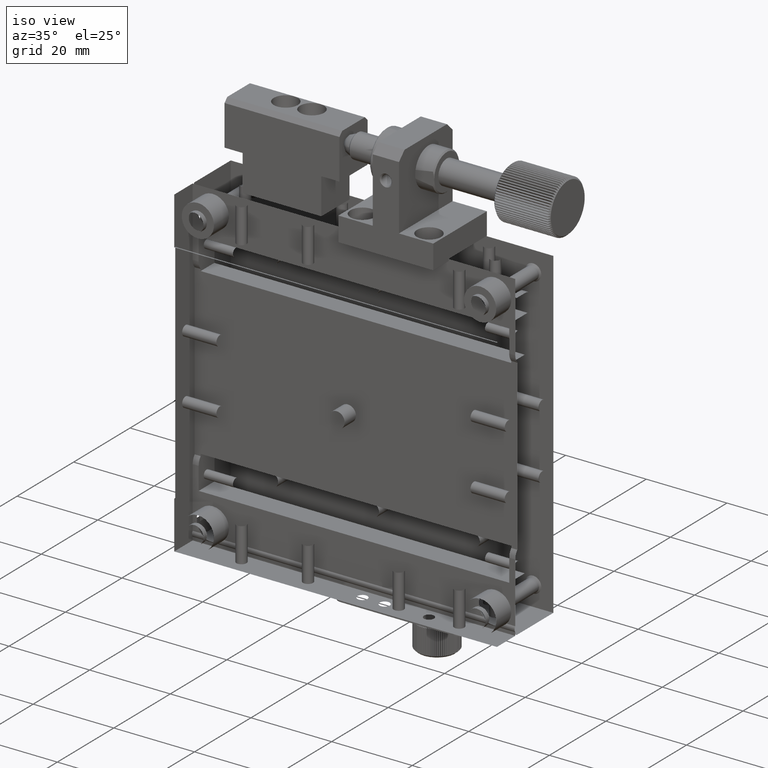
[diagram: clean part render]
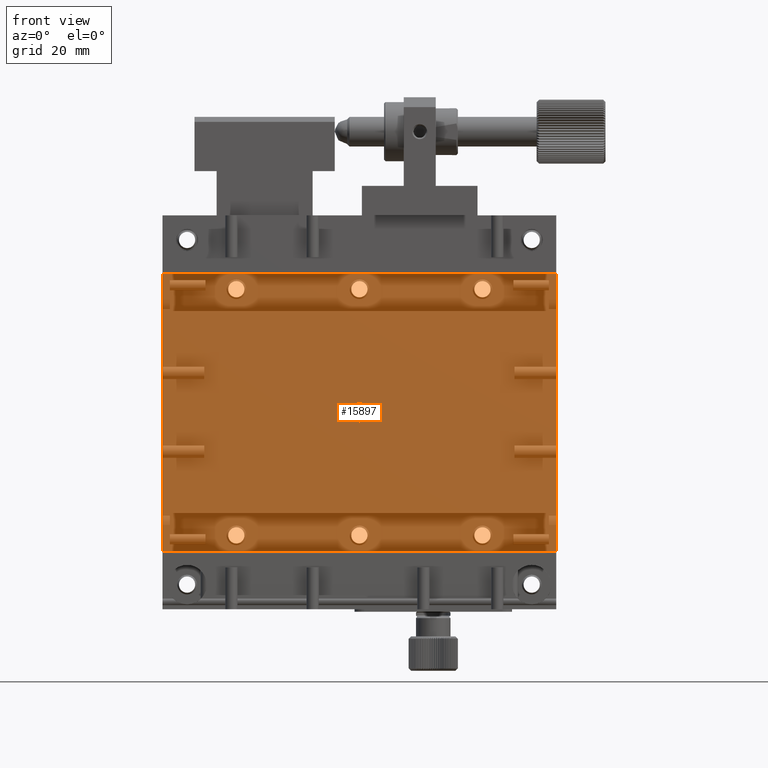
[diagram: tour spotlight — one face highlighted and labeled with its STEP entity id]
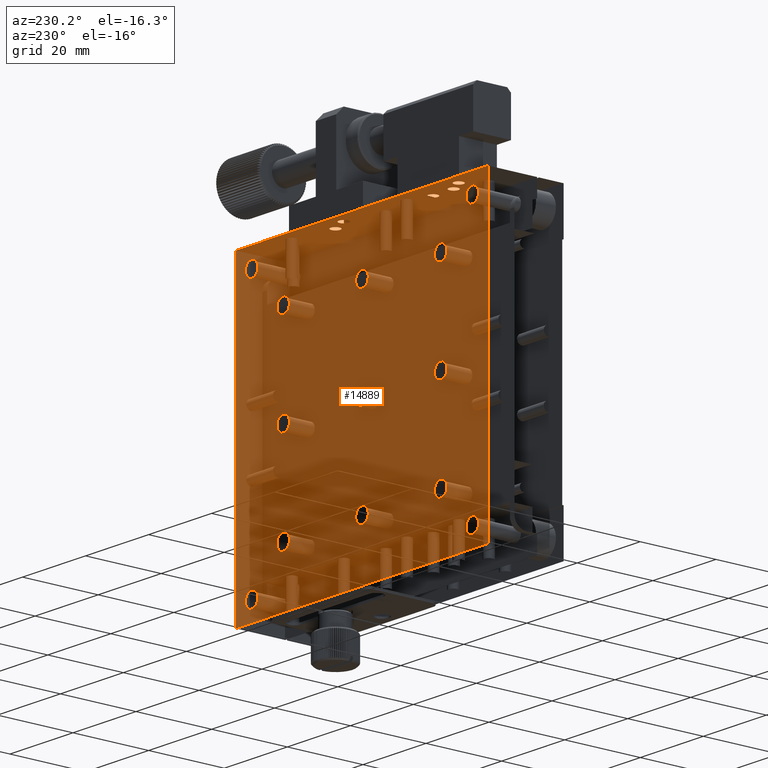
[diagram: tour spotlight — one face highlighted and labeled with its STEP entity id]
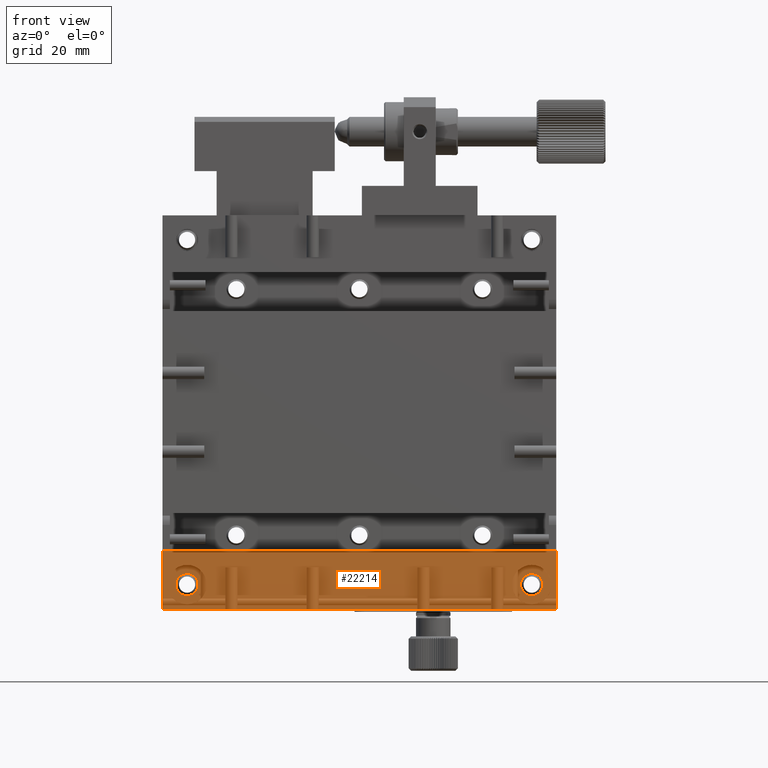
[diagram: tour spotlight — one face highlighted and labeled with its STEP entity id]
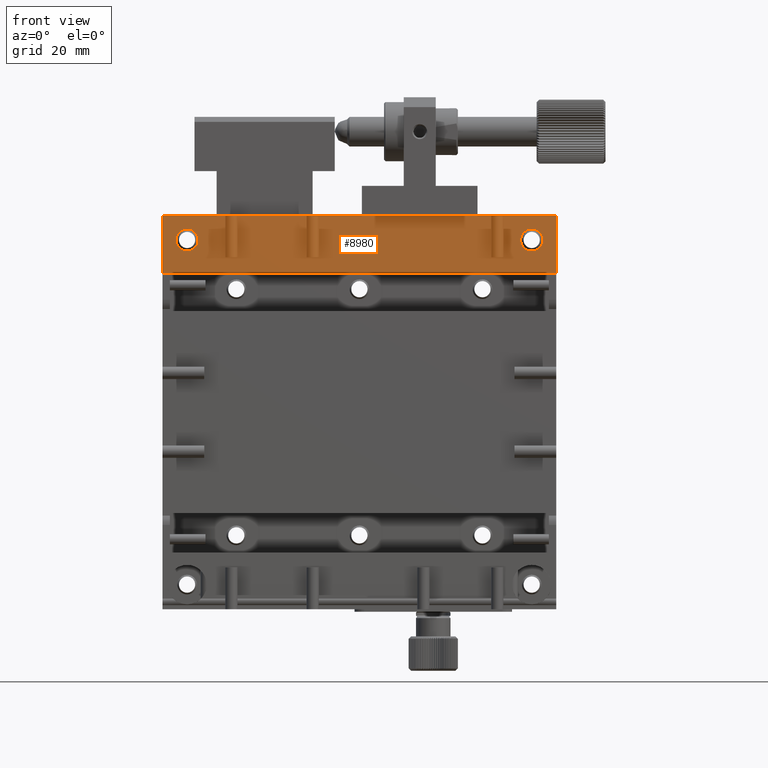
[diagram: tour spotlight — one face highlighted and labeled with its STEP entity id]
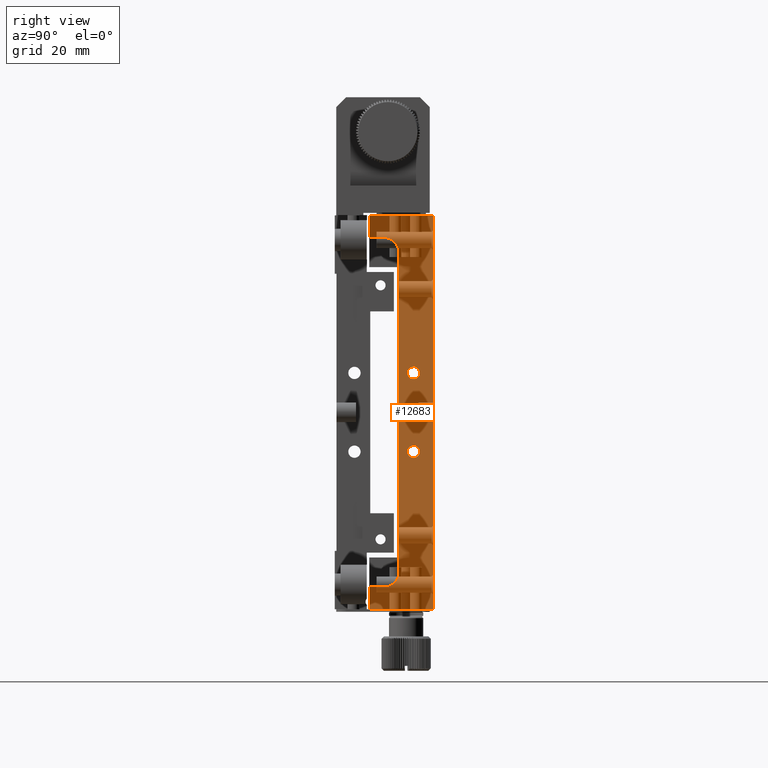
[diagram: tour spotlight — one face highlighted and labeled with its STEP entity id]
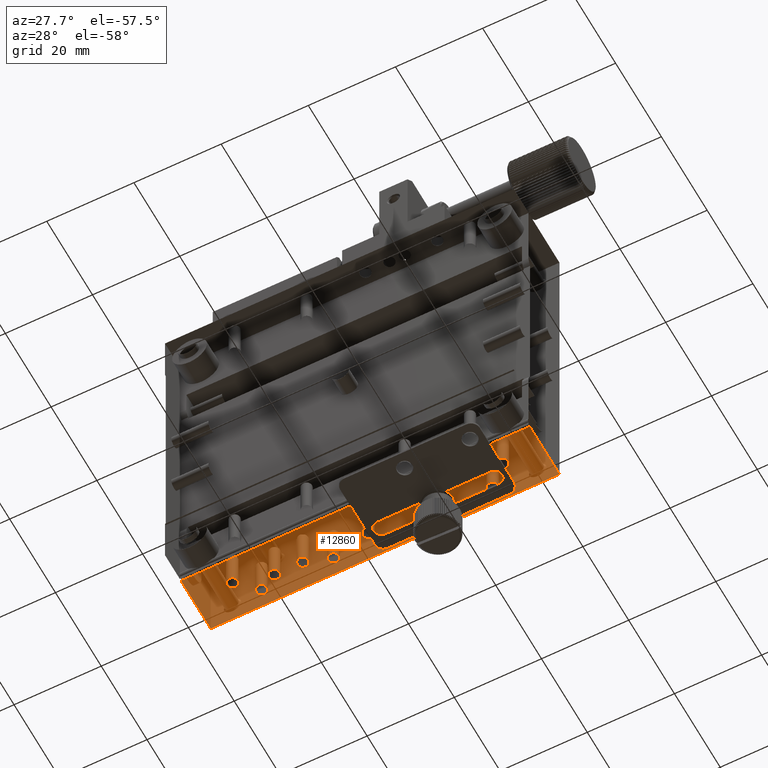
[diagram: tour spotlight — one face highlighted and labeled with its STEP entity id]
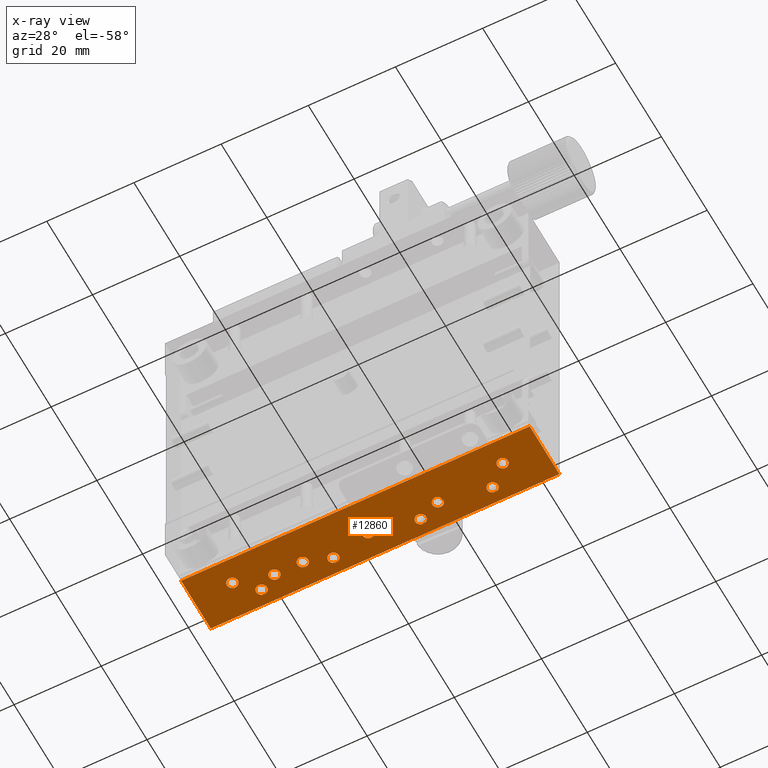
[diagram: x-ray of the same camera — body ghosted, this tour face saturated]
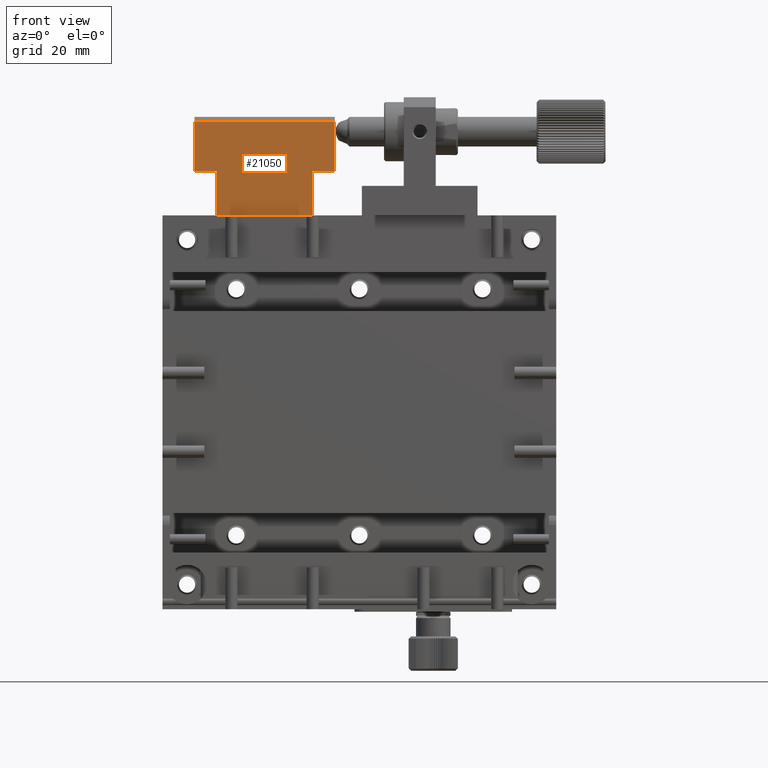
[diagram: tour spotlight — one face highlighted and labeled with its STEP entity id]
A machine part: a face-by-face anatomy tour. The part has 782 B-rep faces; the first image is the clean iso view, then the 7 largest visible faces are spotlighted one at a time (largest first), each with its STEP entity span.

Face 1 — front view, entity #15897. In plain terms, the highlighted planar face has unit normal (0, 1, -0).
Definition (entity closure, byte-faithful):
#728 = DIRECTION ( 'NONE',  ( -0.000000000000000000, -1.000000000000000000, -0.000000000000000000 ) ) ;
#1069 = CARTESIAN_POINT ( 'NONE',  ( 39.52852657937571479, -8.993175164426798318, 28.15000000000000213 ) ) ;
#2007 = FACE_BOUND ( 'NONE', #8364, .T. ) ;
#3068 = CARTESIAN_POINT ( 'NONE',  ( -40.47147342062428521, -8.993175164426798318, -28.15000000000000213 ) ) ;
#3306 = DIRECTION ( 'NONE',  ( 1.000000000000000000, -0.000000000000000000, 0.000000000000000000 ) ) ;
#4341 = VERTEX_POINT ( 'NONE', #8731 ) ;
#4505 = DIRECTION ( 'NONE',  ( 0.000000000000000000, 0.000000000000000000, -1.000000000000000000 ) ) ;
#4883 = VECTOR ( 'NONE', #3306, 1000.000000000000000 ) ;
#4988 = EDGE_CURVE ( 'NONE', #21201, #9364, #21155, .T. ) ;
#5765 = ORIENTED_EDGE ( 'NONE', *, *, #19076, .T. ) ;
#6297 = FACE_OUTER_BOUND ( 'NONE', #7562, .T. ) ;
#6871 = VECTOR ( 'NONE', #12379, 1000.000000000000000 ) ;
#7562 = EDGE_LOOP ( 'NONE', ( #24410, #5765, #12041, #16900 ) ) ;
#8364 = EDGE_LOOP ( 'NONE', ( #24775 ) ) ;
#8574 = EDGE_CURVE ( 'NONE', #13839, #4341, #12473, .T. ) ;
#8731 = CARTESIAN_POINT ( 'NONE',  ( -40.47147342062428521, -8.993175164426798318, -28.15000000000000213 ) ) ;
#9364 = VERTEX_POINT ( 'NONE', #1069 ) ;
#9817 = DIRECTION ( 'NONE',  ( 0.000000000000000000, 1.000000000000000000, -1.925758743313507022E-18 ) ) ;
#9948 = DIRECTION ( 'NONE',  ( 0.000000000000000000, 1.925758743313507022E-18, 1.000000000000000000 ) ) ;
#10475 = VECTOR ( 'NONE', #24313, 1000.000000000000000 ) ;
#11366 = CARTESIAN_POINT ( 'NONE',  ( -40.47147342062428521, -8.993175164426798318, 28.15000000000000213 ) ) ;
#12041 = ORIENTED_EDGE ( 'NONE', *, *, #8574, .T. ) ;
#12379 = DIRECTION ( 'NONE',  ( -0.000000000000000000, -1.925758743313507022E-18, -1.000000000000000000 ) ) ;
#12473 = LINE ( 'NONE', #14829, #10475 ) ;
#12977 = LINE ( 'NONE', #3068, #18071 ) ;
#13839 = VERTEX_POINT ( 'NONE', #21898 ) ;
#14820 = DIRECTION ( 'NONE',  ( 0.000000000000000000, 1.925758743313507022E-18, 1.000000000000000000 ) ) ;
#14829 = CARTESIAN_POINT ( 'NONE',  ( -40.47147342062428521, -8.993175164426798318, -28.15000000000000213 ) ) ;
#15313 = CARTESIAN_POINT ( 'NONE',  ( -40.47147342062428521, -8.993175164426798318, 28.15000000000000213 ) ) ;
#15559 = EDGE_CURVE ( 'NONE', #4341, #21201, #12977, .T. ) ;
#15745 = CIRCLE ( 'NONE', #16590, 1.999999999999988676 ) ;
#15897 = ADVANCED_FACE ( 'NONE', ( #6297, #2007 ), #19714, .T. ) ;
#16590 = AXIS2_PLACEMENT_3D ( 'NONE', #22341, #728, #4505 ) ;
#16900 = ORIENTED_EDGE ( 'NONE', *, *, #15559, .T. ) ;
#18071 = VECTOR ( 'NONE', #14820, 1000.000000000000000 ) ;
#19064 = LINE ( 'NONE', #24485, #6871 ) ;
#19076 = EDGE_CURVE ( 'NONE', #9364, #13839, #19064, .T. ) ;
#19714 = PLANE ( 'NONE',  #25162 ) ;
#20290 = CARTESIAN_POINT ( 'NONE',  ( -0.4714734206242854331, -8.993175164426801871, -1.999999999999988676 ) ) ;
#21155 = LINE ( 'NONE', #15313, #4883 ) ;
#21201 = VERTEX_POINT ( 'NONE', #11366 ) ;
#21898 = CARTESIAN_POINT ( 'NONE',  ( 39.52852657937571479, -8.993175164426798318, -28.15000000000000213 ) ) ;
#22188 = CARTESIAN_POINT ( 'NONE',  ( -40.47147342062428521, -8.993175164426798318, -28.15000000000000213 ) ) ;
#22341 = CARTESIAN_POINT ( 'NONE',  ( -0.4714734206242854331, -8.993175164426801871, 0.000000000000000000 ) ) ;
#24313 = DIRECTION ( 'NONE',  ( -1.000000000000000000, 0.000000000000000000, -0.000000000000000000 ) ) ;
#24410 = ORIENTED_EDGE ( 'NONE', *, *, #4988, .T. ) ;
#24485 = CARTESIAN_POINT ( 'NONE',  ( 39.52852657937571479, -8.993175164426798318, -28.15000000000000213 ) ) ;
#24589 = VERTEX_POINT ( 'NONE', #20290 ) ;
#24603 = EDGE_CURVE ( 'NONE', #24589, #24589, #15745, .T. ) ;
#24775 = ORIENTED_EDGE ( 'NONE', *, *, #24603, .T. ) ;
#25162 = AXIS2_PLACEMENT_3D ( 'NONE', #22188, #9817, #9948 ) ;

Face 2 — auxiliary view, entity #14889. In plain terms, the highlighted planar face has unit normal (0, -1, 0).
Definition (entity closure, byte-faithful):
#183 = DIRECTION ( 'NONE',  ( 0.000000000000000000, 0.000000000000000000, 1.000000000000000000 ) ) ;
#224 = EDGE_CURVE ( 'NONE', #19542, #19542, #10922, .T. ) ;
#412 = CIRCLE ( 'NONE', #7045, 1.999999999929967576 ) ;
#440 = DIRECTION ( 'NONE',  ( -1.000000000000000000, -0.000000000000000000, -0.000000000000000000 ) ) ;
#598 = EDGE_CURVE ( 'NONE', #3391, #3391, #4265, .T. ) ;
#637 = DIRECTION ( 'NONE',  ( 1.000000000000000000, 0.000000000000000000, 0.000000000000000000 ) ) ;
#658 = CARTESIAN_POINT ( 'NONE',  ( 39.52852657937570768, 10.65682483557320559, -39.99999999999999289 ) ) ;
#697 = CIRCLE ( 'NONE', #6078, 1.999999999986810995 ) ;
#999 = FACE_BOUND ( 'NONE', #5380, .T. ) ;
#1259 = FACE_BOUND ( 'NONE', #24626, .T. ) ;
#1277 = EDGE_LOOP ( 'NONE', ( #13036 ) ) ;
#1525 = CARTESIAN_POINT ( 'NONE',  ( -25.47147342062429232, 10.65682483562113703, 0.000000000000000000 ) ) ;
#1652 = DIRECTION ( 'NONE',  ( 0.000000000000000000, 0.000000000000000000, 1.000000000000000000 ) ) ;
#1793 = VERTEX_POINT ( 'NONE', #25629 ) ;
#2220 = ORIENTED_EDGE ( 'NONE', *, *, #13504, .T. ) ;
#2404 = ORIENTED_EDGE ( 'NONE', *, *, #8897, .T. ) ;
#2431 = VERTEX_POINT ( 'NONE', #658 ) ;
#2590 = ORIENTED_EDGE ( 'NONE', *, *, #598, .T. ) ;
#2657 = DIRECTION ( 'NONE',  ( -0.000000000000000000, 1.000000000000000000, 0.000000000000000000 ) ) ;
#3236 = VECTOR ( 'NONE', #440, 1000.000000000000000 ) ;
#3346 = EDGE_LOOP ( 'NONE', ( #23936 ) ) ;
#3391 = VERTEX_POINT ( 'NONE', #11345 ) ;
#3475 = DIRECTION ( 'NONE',  ( -0.000000000000000000, 0.000000000000000000, 1.000000000000000000 ) ) ;
#3499 = EDGE_LOOP ( 'NONE', ( #6796 ) ) ;
#3512 = EDGE_CURVE ( 'NONE', #15787, #2431, #18603, .T. ) ;
#3601 = DIRECTION ( 'NONE',  ( -0.000000000000000000, 1.000000000000000000, 0.000000000000000000 ) ) ;
#3869 = EDGE_CURVE ( 'NONE', #17967, #17967, #5246, .T. ) ;
#3902 = EDGE_CURVE ( 'NONE', #7807, #7807, #697, .T. ) ;
#4041 = DIRECTION ( 'NONE',  ( -0.000000000000000000, 1.000000000000000000, 0.000000000000000000 ) ) ;
#4073 = AXIS2_PLACEMENT_3D ( 'NONE', #10067, #18010, #183 ) ;
#4166 = VERTEX_POINT ( 'NONE', #12119 ) ;
#4208 = CARTESIAN_POINT ( 'NONE',  ( -0.4714734206242940928, 10.65682483557320559, 40.00000000000000000 ) ) ;
#4265 = CIRCLE ( 'NONE', #19649, 1.999999999975444975 ) ;
#4492 = AXIS2_PLACEMENT_3D ( 'NONE', #20492, #2657, #18538 ) ;
#4886 = EDGE_LOOP ( 'NONE', ( #14056 ) ) ;
#4893 = FACE_BOUND ( 'NONE', #24370, .T. ) ;
#5090 = DIRECTION ( 'NONE',  ( 0.000000000000000000, 0.000000000000000000, 1.000000000000000000 ) ) ;
#5145 = DIRECTION ( 'NONE',  ( 0.000000000000000000, -1.000000000000000000, 0.000000000000000000 ) ) ;
#5246 = CIRCLE ( 'NONE', #25234, 1.999999999895862857 ) ;
#5264 = ORIENTED_EDGE ( 'NONE', *, *, #22515, .T. ) ;
#5380 = EDGE_LOOP ( 'NONE', ( #2590 ) ) ;
#5397 = FACE_BOUND ( 'NONE', #22301, .T. ) ;
#5513 = CIRCLE ( 'NONE', #11348, 1.999999999929967576 ) ;
#5646 = VECTOR ( 'NONE', #637, 1000.000000000000000 ) ;
#5728 = CIRCLE ( 'NONE', #23625, 1.999999999864027211 ) ;
#5768 = EDGE_CURVE ( 'NONE', #21956, #15787, #11929, .T. ) ;
#5832 = EDGE_CURVE ( 'NONE', #21873, #21873, #11597, .T. ) ;
#5836 = CARTESIAN_POINT ( 'NONE',  ( -35.47147342062429232, 10.65682483556429361, 35.00000000000000000 ) ) ;
#6078 = AXIS2_PLACEMENT_3D ( 'NONE', #11552, #12040, #1652 ) ;
#6145 = CIRCLE ( 'NONE', #4492, 1.999999999975444975 ) ;
#6518 = EDGE_CURVE ( 'NONE', #21745, #21745, #23674, .T. ) ;
#6653 = DIRECTION ( 'NONE',  ( -0.000000000000000000, 1.000000000000000000, 0.000000000000000000 ) ) ;
#6796 = ORIENTED_EDGE ( 'NONE', *, *, #6518, .T. ) ;
#6809 = EDGE_CURVE ( 'NONE', #4166, #4166, #412, .T. ) ;
#6846 = FACE_BOUND ( 'NONE', #3499, .T. ) ;
#7045 = AXIS2_PLACEMENT_3D ( 'NONE', #25282, #13438, #5090 ) ;
#7282 = VERTEX_POINT ( 'NONE', #17669 ) ;
#7356 = FACE_BOUND ( 'NONE', #4886, .T. ) ;
#7464 = CARTESIAN_POINT ( 'NONE',  ( -0.4714734206242940928, 10.65682483557320559, 0.000000000000000000 ) ) ;
#7807 = VERTEX_POINT ( 'NONE', #15785 ) ;
#7859 = CARTESIAN_POINT ( 'NONE',  ( 24.52852657937570768, 10.65682483562113703, 25.00000000000000000 ) ) ;
#7984 = DIRECTION ( 'NONE',  ( 0.000000000000000000, 1.000000000000000000, 0.000000000000000000 ) ) ;
#8063 = CARTESIAN_POINT ( 'NONE',  ( -0.4714734206242940928, 10.65682483557320559, 1.999999999999988676 ) ) ;
#8106 = LINE ( 'NONE', #4208, #3236 ) ;
#8113 = DIRECTION ( 'NONE',  ( 0.000000000000000000, 0.000000000000000000, 1.000000000000000000 ) ) ;
#8897 = EDGE_CURVE ( 'NONE', #24733, #24733, #21226, .T. ) ;
#9192 = CARTESIAN_POINT ( 'NONE',  ( -0.4714734206242940928, 10.65682483557320559, 0.000000000000000000 ) ) ;
#9236 = VERTEX_POINT ( 'NONE', #25123 ) ;
#9507 = VECTOR ( 'NONE', #18174, 1000.000000000000000 ) ;
#10067 = CARTESIAN_POINT ( 'NONE',  ( 34.52852657937570768, 10.65682483556429361, 35.00000000000000000 ) ) ;
#10401 = CARTESIAN_POINT ( 'NONE',  ( 24.52852657937570768, 10.65682483562113703, -23.00000000002455636 ) ) ;
#10484 = DIRECTION ( 'NONE',  ( 0.000000000000000000, 0.000000000000000000, 1.000000000000000000 ) ) ;
#10557 = ORIENTED_EDGE ( 'NONE', *, *, #21711, .T. ) ;
#10572 = CARTESIAN_POINT ( 'NONE',  ( -35.47147342062429232, 10.65682483556429361, -35.00000000000000000 ) ) ;
#10890 = FACE_OUTER_BOUND ( 'NONE', #22435, .T. ) ;
#10922 = CIRCLE ( 'NONE', #25475, 1.999999999895862857 ) ;
#11273 = DIRECTION ( 'NONE',  ( 0.000000000000000000, -0.000000000000000000, -1.000000000000000000 ) ) ;
#11345 = CARTESIAN_POINT ( 'NONE',  ( -25.47147342062429232, 10.65682483562113703, -23.00000000002455636 ) ) ;
#11348 = AXIS2_PLACEMENT_3D ( 'NONE', #7859, #7984, #10484 ) ;
#11405 = FACE_BOUND ( 'NONE', #18884, .T. ) ;
#11552 = CARTESIAN_POINT ( 'NONE',  ( -0.4714734206242940928, 10.65682483556429361, 25.00000000000000000 ) ) ;
#11581 = AXIS2_PLACEMENT_3D ( 'NONE', #16244, #15851, #21688 ) ;
#11597 = CIRCLE ( 'NONE', #11581, 1.999999999918601556 ) ;
#11929 = LINE ( 'NONE', #24164, #9507 ) ;
#12040 = DIRECTION ( 'NONE',  ( -0.000000000000000000, 1.000000000000000000, 0.000000000000000000 ) ) ;
#12042 = CARTESIAN_POINT ( 'NONE',  ( -40.47147342062429232, 10.65682483557320559, -39.99999999999999289 ) ) ;
#12119 = CARTESIAN_POINT ( 'NONE',  ( -25.47147342062429232, 10.65682483562113703, 26.99999999992996891 ) ) ;
#12481 = CARTESIAN_POINT ( 'NONE',  ( 34.52852657937570768, 10.65682483556429361, 36.99999999986403054 ) ) ;
#12678 = ORIENTED_EDGE ( 'NONE', *, *, #3902, .T. ) ;
#13022 = VERTEX_POINT ( 'NONE', #16926 ) ;
#13036 = ORIENTED_EDGE ( 'NONE', *, *, #16424, .T. ) ;
#13408 = EDGE_LOOP ( 'NONE', ( #20397 ) ) ;
#13438 = DIRECTION ( 'NONE',  ( 0.000000000000000000, 1.000000000000000000, 0.000000000000000000 ) ) ;
#13504 = EDGE_CURVE ( 'NONE', #13022, #13022, #5513, .T. ) ;
#13763 = CARTESIAN_POINT ( 'NONE',  ( -40.47147342062429232, 10.65682483557320559, 40.00000000000000000 ) ) ;
#13832 = DIRECTION ( 'NONE',  ( 0.000000000000000000, 0.000000000000000000, 1.000000000000000000 ) ) ;
#13885 = AXIS2_PLACEMENT_3D ( 'NONE', #9192, #5145, #11273 ) ;
#14026 = CARTESIAN_POINT ( 'NONE',  ( -25.47147342062429232, 10.65682483562113703, -25.00000000000000000 ) ) ;
#14056 = ORIENTED_EDGE ( 'NONE', *, *, #22585, .T. ) ;
#14217 = CARTESIAN_POINT ( 'NONE',  ( -25.47147342062429232, 10.65682483562113703, 1.999999999895862857 ) ) ;
#14500 = VECTOR ( 'NONE', #3475, 1000.000000000000000 ) ;
#14626 = DIRECTION ( 'NONE',  ( 0.000000000000000000, 0.000000000000000000, 1.000000000000000000 ) ) ;
#14818 = CIRCLE ( 'NONE', #17281, 1.999999999870855083 ) ;
#14822 = ORIENTED_EDGE ( 'NONE', *, *, #21082, .T. ) ;
#14889 = ADVANCED_FACE ( 'NONE', ( #10890, #6846, #7356, #11405, #24826, #19220, #23124, #999, #4893, #18831, #1259, #20920, #15334, #5397 ), #24959, .T. ) ;
#15237 = LINE ( 'NONE', #15360, #14500 ) ;
#15334 = FACE_BOUND ( 'NONE', #3346, .T. ) ;
#15360 = CARTESIAN_POINT ( 'NONE',  ( 39.52852657937570768, 10.65682483557320559, 0.000000000000000000 ) ) ;
#15523 = CARTESIAN_POINT ( 'NONE',  ( 24.52852657937570768, 10.65682483562113703, 1.999999999895862857 ) ) ;
#15710 = DIRECTION ( 'NONE',  ( -0.000000000000000000, 1.000000000000000000, 0.000000000000000000 ) ) ;
#15785 = CARTESIAN_POINT ( 'NONE',  ( -0.4714734206242940928, 10.65682483556429361, 26.99999999998681233 ) ) ;
#15787 = VERTEX_POINT ( 'NONE', #12042 ) ;
#15851 = DIRECTION ( 'NONE',  ( -0.000000000000000000, 1.000000000000000000, 0.000000000000000000 ) ) ;
#16244 = CARTESIAN_POINT ( 'NONE',  ( -0.4714734206242940928, 10.65682483562113703, -25.00000000000000000 ) ) ;
#16270 = VERTEX_POINT ( 'NONE', #12481 ) ;
#16424 = EDGE_CURVE ( 'NONE', #9236, #9236, #14818, .T. ) ;
#16924 = EDGE_LOOP ( 'NONE', ( #24125 ) ) ;
#16926 = CARTESIAN_POINT ( 'NONE',  ( 24.52852657937570768, 10.65682483562113703, 26.99999999992996891 ) ) ;
#17281 = AXIS2_PLACEMENT_3D ( 'NONE', #10572, #6653, #14626 ) ;
#17669 = CARTESIAN_POINT ( 'NONE',  ( 39.52852657937570768, 10.65682483557320559, 39.99999999999999289 ) ) ;
#17821 = ORIENTED_EDGE ( 'NONE', *, *, #3869, .T. ) ;
#17854 = AXIS2_PLACEMENT_3D ( 'NONE', #7464, #21521, #19194 ) ;
#17967 = VERTEX_POINT ( 'NONE', #14217 ) ;
#18010 = DIRECTION ( 'NONE',  ( -0.000000000000000000, 1.000000000000000000, 0.000000000000000000 ) ) ;
#18174 = DIRECTION ( 'NONE',  ( 0.000000000000000000, -0.000000000000000000, -1.000000000000000000 ) ) ;
#18447 = DIRECTION ( 'NONE',  ( -0.000000000000000000, 1.000000000000000000, 0.000000000000000000 ) ) ;
#18538 = DIRECTION ( 'NONE',  ( 0.000000000000000000, 0.000000000000000000, 1.000000000000000000 ) ) ;
#18594 = VERTEX_POINT ( 'NONE', #10401 ) ;
#18603 = LINE ( 'NONE', #20302, #5646 ) ;
#18831 = FACE_BOUND ( 'NONE', #21299, .T. ) ;
#18884 = EDGE_LOOP ( 'NONE', ( #2220 ) ) ;
#19194 = DIRECTION ( 'NONE',  ( 0.000000000000000000, 0.000000000000000000, 1.000000000000000000 ) ) ;
#19220 = FACE_BOUND ( 'NONE', #1277, .T. ) ;
#19542 = VERTEX_POINT ( 'NONE', #15523 ) ;
#19649 = AXIS2_PLACEMENT_3D ( 'NONE', #14026, #18447, #21951 ) ;
#19720 = DIRECTION ( 'NONE',  ( 0.000000000000000000, 0.000000000000000000, 1.000000000000000000 ) ) ;
#19877 = CIRCLE ( 'NONE', #4073, 1.999999999864027211 ) ;
#20271 = ORIENTED_EDGE ( 'NONE', *, *, #3512, .T. ) ;
#20302 = CARTESIAN_POINT ( 'NONE',  ( -0.4714734206242940928, 10.65682483557320559, -39.99999999999999289 ) ) ;
#20326 = CARTESIAN_POINT ( 'NONE',  ( 34.52852657937570768, 10.65682483556429361, -33.00000000012914825 ) ) ;
#20397 = ORIENTED_EDGE ( 'NONE', *, *, #224, .T. ) ;
#20492 = CARTESIAN_POINT ( 'NONE',  ( 24.52852657937570768, 10.65682483562113703, -25.00000000000000000 ) ) ;
#20920 = FACE_BOUND ( 'NONE', #23796, .T. ) ;
#21082 = EDGE_CURVE ( 'NONE', #2431, #7282, #15237, .T. ) ;
#21226 = CIRCLE ( 'NONE', #23301, 1.999999999870855083 ) ;
#21299 = EDGE_LOOP ( 'NONE', ( #10557 ) ) ;
#21521 = DIRECTION ( 'NONE',  ( 0.000000000000000000, 1.000000000000000000, 0.000000000000000000 ) ) ;
#21688 = DIRECTION ( 'NONE',  ( 0.000000000000000000, 0.000000000000000000, 1.000000000000000000 ) ) ;
#21711 = EDGE_CURVE ( 'NONE', #1793, #1793, #5728, .T. ) ;
#21745 = VERTEX_POINT ( 'NONE', #8063 ) ;
#21873 = VERTEX_POINT ( 'NONE', #23962 ) ;
#21936 = CARTESIAN_POINT ( 'NONE',  ( 34.52852657937570768, 10.65682483556429361, -35.00000000000000000 ) ) ;
#21951 = DIRECTION ( 'NONE',  ( 0.000000000000000000, 0.000000000000000000, 1.000000000000000000 ) ) ;
#21956 = VERTEX_POINT ( 'NONE', #13763 ) ;
#21987 = ORIENTED_EDGE ( 'NONE', *, *, #5768, .T. ) ;
#22301 = EDGE_LOOP ( 'NONE', ( #2404 ) ) ;
#22435 = EDGE_LOOP ( 'NONE', ( #14822, #5264, #21987, #20271 ) ) ;
#22515 = EDGE_CURVE ( 'NONE', #7282, #21956, #8106, .T. ) ;
#22585 = EDGE_CURVE ( 'NONE', #18594, #18594, #6145, .T. ) ;
#22609 = EDGE_CURVE ( 'NONE', #16270, #16270, #19877, .T. ) ;
#23124 = FACE_BOUND ( 'NONE', #13408, .T. ) ;
#23301 = AXIS2_PLACEMENT_3D ( 'NONE', #21936, #15710, #19720 ) ;
#23561 = DIRECTION ( 'NONE',  ( 0.000000000000000000, 0.000000000000000000, 1.000000000000000000 ) ) ;
#23625 = AXIS2_PLACEMENT_3D ( 'NONE', #5836, #23692, #23561 ) ;
#23674 = CIRCLE ( 'NONE', #17854, 1.999999999999988676 ) ;
#23692 = DIRECTION ( 'NONE',  ( -0.000000000000000000, 1.000000000000000000, 0.000000000000000000 ) ) ;
#23796 = EDGE_LOOP ( 'NONE', ( #12678 ) ) ;
#23936 = ORIENTED_EDGE ( 'NONE', *, *, #22609, .T. ) ;
#23962 = CARTESIAN_POINT ( 'NONE',  ( -0.4714734206242940928, 10.65682483562113703, -23.00000000008139978 ) ) ;
#24125 = ORIENTED_EDGE ( 'NONE', *, *, #5832, .T. ) ;
#24164 = CARTESIAN_POINT ( 'NONE',  ( -40.47147342062429232, 10.65682483557320559, 0.000000000000000000 ) ) ;
#24229 = CARTESIAN_POINT ( 'NONE',  ( 24.52852657937570768, 10.65682483562113703, 0.000000000000000000 ) ) ;
#24370 = EDGE_LOOP ( 'NONE', ( #17821 ) ) ;
#24567 = ORIENTED_EDGE ( 'NONE', *, *, #6809, .T. ) ;
#24626 = EDGE_LOOP ( 'NONE', ( #24567 ) ) ;
#24733 = VERTEX_POINT ( 'NONE', #20326 ) ;
#24826 = FACE_BOUND ( 'NONE', #16924, .T. ) ;
#24959 = PLANE ( 'NONE',  #13885 ) ;
#25123 = CARTESIAN_POINT ( 'NONE',  ( -35.47147342062429232, 10.65682483556429361, -33.00000000012914825 ) ) ;
#25234 = AXIS2_PLACEMENT_3D ( 'NONE', #1525, #3601, #8113 ) ;
#25282 = CARTESIAN_POINT ( 'NONE',  ( -25.47147342062429232, 10.65682483562113703, 25.00000000000000000 ) ) ;
#25475 = AXIS2_PLACEMENT_3D ( 'NONE', #24229, #4041, #13832 ) ;
#25629 = CARTESIAN_POINT ( 'NONE',  ( -35.47147342062429232, 10.65682483556429361, 36.99999999986403054 ) ) ;

Face 3 — front view, entity #22214. In plain terms, the highlighted planar face has unit normal (0, 1, 0).
Definition (entity closure, byte-faithful):
#269 = EDGE_CURVE ( 'NONE', #1772, #13129, #16933, .T. ) ;
#280 = VERTEX_POINT ( 'NONE', #20840 ) ;
#542 = VECTOR ( 'NONE', #16567, 1000.000000000000000 ) ;
#1772 = VERTEX_POINT ( 'NONE', #7491 ) ;
#1870 = VERTEX_POINT ( 'NONE', #18030 ) ;
#1983 = VECTOR ( 'NONE', #11621, 1000.000000000000000 ) ;
#3230 = VECTOR ( 'NONE', #12874, 1000.000000000000000 ) ;
#4155 = DIRECTION ( 'NONE',  ( -0.000000000000000000, -1.000000000000000000, -0.000000000000000000 ) ) ;
#4238 = FACE_BOUND ( 'NONE', #21309, .T. ) ;
#4346 = EDGE_LOOP ( 'NONE', ( #15058 ) ) ;
#5002 = DIRECTION ( 'NONE',  ( 0.000000000000000000, 1.000000000000000000, 0.000000000000000000 ) ) ;
#7250 = ORIENTED_EDGE ( 'NONE', *, *, #23789, .T. ) ;
#7491 = CARTESIAN_POINT ( 'NONE',  ( -40.47147342062428521, -9.343175164426799739, -40.00000000000000711 ) ) ;
#7631 = EDGE_LOOP ( 'NONE', ( #24898, #16608, #23230, #7250 ) ) ;
#8493 = ORIENTED_EDGE ( 'NONE', *, *, #16707, .T. ) ;
#8935 = VECTOR ( 'NONE', #19980, 1000.000000000000000 ) ;
#9834 = DIRECTION ( 'NONE',  ( 0.000000000000000000, 0.000000000000000000, 1.000000000000000000 ) ) ;
#10219 = LINE ( 'NONE', #16231, #8935 ) ;
#10231 = AXIS2_PLACEMENT_3D ( 'NONE', #13939, #4155, #25516 ) ;
#10908 = LINE ( 'NONE', #22374, #3230 ) ;
#11621 = DIRECTION ( 'NONE',  ( 0.000000000000000000, 0.000000000000000000, 1.000000000000000000 ) ) ;
#12503 = EDGE_CURVE ( 'NONE', #14994, #14994, #16738, .T. ) ;
#12874 = DIRECTION ( 'NONE',  ( 0.000000000000000000, 0.000000000000000000, -1.000000000000000000 ) ) ;
#13129 = VERTEX_POINT ( 'NONE', #16930 ) ;
#13219 = DIRECTION ( 'NONE',  ( 0.000000000000000000, -0.000000000000000000, 1.000000000000000000 ) ) ;
#13939 = CARTESIAN_POINT ( 'NONE',  ( -35.47147342062429232, -9.343175164426805068, -35.00000000000000000 ) ) ;
#14155 = FACE_OUTER_BOUND ( 'NONE', #7631, .T. ) ;
#14994 = VERTEX_POINT ( 'NONE', #24994 ) ;
#15058 = ORIENTED_EDGE ( 'NONE', *, *, #12503, .T. ) ;
#15250 = VERTEX_POINT ( 'NONE', #19264 ) ;
#15671 = LINE ( 'NONE', #19940, #1983 ) ;
#16231 = CARTESIAN_POINT ( 'NONE',  ( -40.47147342062428521, -9.343175164426799739, -28.15000000000000213 ) ) ;
#16501 = CIRCLE ( 'NONE', #10231, 2.250000000000015987 ) ;
#16567 = DIRECTION ( 'NONE',  ( 1.000000000000000000, 0.000000000000000000, -0.000000000000000000 ) ) ;
#16608 = ORIENTED_EDGE ( 'NONE', *, *, #24201, .T. ) ;
#16707 = EDGE_CURVE ( 'NONE', #15250, #15250, #16501, .T. ) ;
#16738 = CIRCLE ( 'NONE', #20892, 2.250000000000015987 ) ;
#16810 = CARTESIAN_POINT ( 'NONE',  ( -0.4714734206242854331, -9.343175164426799739, -40.00000000000000711 ) ) ;
#16930 = CARTESIAN_POINT ( 'NONE',  ( 39.52852657937571479, -9.343175164426799739, -40.00000000000000711 ) ) ;
#16933 = LINE ( 'NONE', #16810, #542 ) ;
#18030 = CARTESIAN_POINT ( 'NONE',  ( 39.52852657937571479, -9.343175164426799739, -28.15000000000000213 ) ) ;
#18701 = EDGE_CURVE ( 'NONE', #1870, #280, #10219, .T. ) ;
#19207 = PLANE ( 'NONE',  #19850 ) ;
#19264 = CARTESIAN_POINT ( 'NONE',  ( -35.47147342062429232, -9.343175164426805068, -32.74999999999998579 ) ) ;
#19850 = AXIS2_PLACEMENT_3D ( 'NONE', #21034, #5002, #13219 ) ;
#19940 = CARTESIAN_POINT ( 'NONE',  ( -40.47147342062428521, -9.343175164426799739, -22.89999999999999858 ) ) ;
#19980 = DIRECTION ( 'NONE',  ( -1.000000000000000000, 0.000000000000000000, -0.000000000000000000 ) ) ;
#20840 = CARTESIAN_POINT ( 'NONE',  ( -40.47147342062428521, -9.343175164426799739, -28.15000000000000213 ) ) ;
#20892 = AXIS2_PLACEMENT_3D ( 'NONE', #25724, #25468, #9834 ) ;
#21034 = CARTESIAN_POINT ( 'NONE',  ( -0.4714734206242854331, -9.343175164426799739, 0.000000000000000000 ) ) ;
#21309 = EDGE_LOOP ( 'NONE', ( #8493 ) ) ;
#22075 = FACE_BOUND ( 'NONE', #4346, .T. ) ;
#22214 = ADVANCED_FACE ( 'NONE', ( #14155, #22075, #4238 ), #19207, .T. ) ;
#22374 = CARTESIAN_POINT ( 'NONE',  ( 39.52852657937571479, -9.343175164426799739, -22.89999999999999858 ) ) ;
#23230 = ORIENTED_EDGE ( 'NONE', *, *, #269, .F. ) ;
#23789 = EDGE_CURVE ( 'NONE', #1772, #280, #15671, .T. ) ;
#24201 = EDGE_CURVE ( 'NONE', #1870, #13129, #10908, .T. ) ;
#24898 = ORIENTED_EDGE ( 'NONE', *, *, #18701, .F. ) ;
#24994 = CARTESIAN_POINT ( 'NONE',  ( 34.52852657937571479, -9.343175164426805068, -32.74999999999998579 ) ) ;
#25468 = DIRECTION ( 'NONE',  ( -0.000000000000000000, -1.000000000000000000, -0.000000000000000000 ) ) ;
#25516 = DIRECTION ( 'NONE',  ( 0.000000000000000000, 0.000000000000000000, 1.000000000000000000 ) ) ;
#25724 = CARTESIAN_POINT ( 'NONE',  ( 34.52852657937571479, -9.343175164426805068, -35.00000000000000000 ) ) ;

Face 4 — front view, entity #8980. In plain terms, the highlighted planar face has unit normal (0, 1, 0).
Definition (entity closure, byte-faithful):
#85 = LINE ( 'NONE', #3246, #15514 ) ;
#270 = EDGE_CURVE ( 'NONE', #19046, #25069, #8594, .T. ) ;
#466 = EDGE_CURVE ( 'NONE', #12236, #19046, #85, .T. ) ;
#537 = DIRECTION ( 'NONE',  ( 1.000000000000000000, 0.000000000000000000, -0.000000000000000000 ) ) ;
#592 = DIRECTION ( 'NONE',  ( 0.000000000000000000, -0.000000000000000000, 1.000000000000000000 ) ) ;
#868 = CIRCLE ( 'NONE', #7099, 2.250000000000015987 ) ;
#2079 = CARTESIAN_POINT ( 'NONE',  ( -40.47147342062428521, -9.343175164426799739, 39.99999999999999289 ) ) ;
#2150 = ORIENTED_EDGE ( 'NONE', *, *, #270, .T. ) ;
#2249 = ORIENTED_EDGE ( 'NONE', *, *, #466, .T. ) ;
#3243 = ORIENTED_EDGE ( 'NONE', *, *, #9399, .T. ) ;
#3246 = CARTESIAN_POINT ( 'NONE',  ( -40.47147342062428521, -9.343175164426799739, -22.89999999999999858 ) ) ;
#3507 = DIRECTION ( 'NONE',  ( 0.000000000000000000, 0.000000000000000000, 1.000000000000000000 ) ) ;
#5807 = LINE ( 'NONE', #11563, #18029 ) ;
#6077 = VERTEX_POINT ( 'NONE', #19633 ) ;
#6284 = LINE ( 'NONE', #22567, #21523 ) ;
#6307 = ORIENTED_EDGE ( 'NONE', *, *, #22518, .T. ) ;
#6335 = CARTESIAN_POINT ( 'NONE',  ( 39.52852657937571479, -9.343175164426799739, 28.15000000000000213 ) ) ;
#6697 = FACE_BOUND ( 'NONE', #21028, .T. ) ;
#7099 = AXIS2_PLACEMENT_3D ( 'NONE', #15909, #16044, #15784 ) ;
#8375 = DIRECTION ( 'NONE',  ( 0.000000000000000000, 0.000000000000000000, -1.000000000000000000 ) ) ;
#8594 = LINE ( 'NONE', #10688, #15113 ) ;
#8903 = CARTESIAN_POINT ( 'NONE',  ( -0.4714734206242854331, -9.343175164426799739, 0.000000000000000000 ) ) ;
#8980 = ADVANCED_FACE ( 'NONE', ( #18558, #24552, #6697 ), #20635, .T. ) ;
#9399 = EDGE_CURVE ( 'NONE', #18241, #18241, #868, .T. ) ;
#9908 = CIRCLE ( 'NONE', #24880, 2.250000000000015987 ) ;
#10688 = CARTESIAN_POINT ( 'NONE',  ( -0.4714734206242854331, -9.343175164426799739, 40.00000000000000000 ) ) ;
#11563 = CARTESIAN_POINT ( 'NONE',  ( -40.47147342062428521, -9.343175164426799739, 28.15000000000000213 ) ) ;
#12236 = VERTEX_POINT ( 'NONE', #18068 ) ;
#13159 = DIRECTION ( 'NONE',  ( 0.000000000000000000, 0.000000000000000000, 1.000000000000000000 ) ) ;
#13782 = DIRECTION ( 'NONE',  ( 1.000000000000000000, 0.000000000000000000, -0.000000000000000000 ) ) ;
#14603 = EDGE_CURVE ( 'NONE', #12236, #19447, #5807, .T. ) ;
#14608 = CARTESIAN_POINT ( 'NONE',  ( 34.52852657937571479, -9.343175164426805068, 37.25000000000002132 ) ) ;
#14672 = DIRECTION ( 'NONE',  ( 0.000000000000000000, 1.000000000000000000, 0.000000000000000000 ) ) ;
#15113 = VECTOR ( 'NONE', #537, 1000.000000000000000 ) ;
#15514 = VECTOR ( 'NONE', #13159, 1000.000000000000000 ) ;
#15784 = DIRECTION ( 'NONE',  ( 0.000000000000000000, 0.000000000000000000, 1.000000000000000000 ) ) ;
#15909 = CARTESIAN_POINT ( 'NONE',  ( 34.52852657937571479, -9.343175164426805068, 35.00000000000000000 ) ) ;
#16044 = DIRECTION ( 'NONE',  ( -0.000000000000000000, -1.000000000000000000, -0.000000000000000000 ) ) ;
#16249 = ORIENTED_EDGE ( 'NONE', *, *, #14603, .F. ) ;
#18029 = VECTOR ( 'NONE', #13782, 1000.000000000000000 ) ;
#18068 = CARTESIAN_POINT ( 'NONE',  ( -40.47147342062428521, -9.343175164426799739, 28.14999999999999858 ) ) ;
#18241 = VERTEX_POINT ( 'NONE', #14608 ) ;
#18558 = FACE_OUTER_BOUND ( 'NONE', #21883, .T. ) ;
#18856 = ORIENTED_EDGE ( 'NONE', *, *, #21664, .T. ) ;
#19046 = VERTEX_POINT ( 'NONE', #2079 ) ;
#19447 = VERTEX_POINT ( 'NONE', #6335 ) ;
#19633 = CARTESIAN_POINT ( 'NONE',  ( -35.47147342062429232, -9.343175164426805068, 37.25000000000002132 ) ) ;
#19651 = DIRECTION ( 'NONE',  ( -0.000000000000000000, -1.000000000000000000, -0.000000000000000000 ) ) ;
#20635 = PLANE ( 'NONE',  #22525 ) ;
#21028 = EDGE_LOOP ( 'NONE', ( #3243 ) ) ;
#21209 = CARTESIAN_POINT ( 'NONE',  ( 39.52852657937571479, -9.343175164426799739, 39.99999999999999289 ) ) ;
#21523 = VECTOR ( 'NONE', #8375, 1000.000000000000000 ) ;
#21664 = EDGE_CURVE ( 'NONE', #6077, #6077, #9908, .T. ) ;
#21735 = CARTESIAN_POINT ( 'NONE',  ( -35.47147342062429232, -9.343175164426805068, 35.00000000000000000 ) ) ;
#21883 = EDGE_LOOP ( 'NONE', ( #16249, #2249, #2150, #6307 ) ) ;
#22369 = EDGE_LOOP ( 'NONE', ( #18856 ) ) ;
#22518 = EDGE_CURVE ( 'NONE', #25069, #19447, #6284, .T. ) ;
#22525 = AXIS2_PLACEMENT_3D ( 'NONE', #8903, #14672, #592 ) ;
#22567 = CARTESIAN_POINT ( 'NONE',  ( 39.52852657937571479, -9.343175164426799739, -22.89999999999999858 ) ) ;
#24552 = FACE_BOUND ( 'NONE', #22369, .T. ) ;
#24880 = AXIS2_PLACEMENT_3D ( 'NONE', #21735, #19651, #3507 ) ;
#25069 = VERTEX_POINT ( 'NONE', #21209 ) ;

Face 5 — right view, entity #12683. In plain terms, the highlighted planar face has unit normal (1, -0, 0).
Definition (entity closure, byte-faithful):
#11 = VERTEX_POINT ( 'NONE', #7673 ) ;
#448 = VECTOR ( 'NONE', #1550, 1000.000000000000000 ) ;
#658 = CARTESIAN_POINT ( 'NONE',  ( 39.52852657937570768, 10.65682483557320559, -39.99999999999999289 ) ) ;
#899 = LINE ( 'NONE', #4676, #21450 ) ;
#1022 = DIRECTION ( 'NONE',  ( 0.000000000000000000, 1.000000000000000000, 0.000000000000000000 ) ) ;
#1233 = CARTESIAN_POINT ( 'NONE',  ( 39.52852657937570768, 3.656824835573202037, -32.49999999999999289 ) ) ;
#1269 = CARTESIAN_POINT ( 'NONE',  ( 39.52852657937570768, -2.343175164426796631, -35.50000000000000711 ) ) ;
#1543 = CARTESIAN_POINT ( 'NONE',  ( 39.52852657937570768, 6.656824835573202925, -8.000000000000000000 ) ) ;
#1545 = CIRCLE ( 'NONE', #6955, 2.999999999999999112 ) ;
#1550 = DIRECTION ( 'NONE',  ( 0.000000000000000000, 0.000000000000000000, -1.000000000000000000 ) ) ;
#1904 = CARTESIAN_POINT ( 'NONE',  ( 39.52852657937570768, 0.6568248355732049237, 35.50000000000001421 ) ) ;
#2296 = AXIS2_PLACEMENT_3D ( 'NONE', #18548, #4614, #6688 ) ;
#2431 = VERTEX_POINT ( 'NONE', #658 ) ;
#2535 = CARTESIAN_POINT ( 'NONE',  ( 39.52852657937570768, 0.6568248355732047017, 32.50000000000000000 ) ) ;
#3222 = LINE ( 'NONE', #7012, #22412 ) ;
#3475 = DIRECTION ( 'NONE',  ( -0.000000000000000000, 0.000000000000000000, 1.000000000000000000 ) ) ;
#3523 = VERTEX_POINT ( 'NONE', #8311 ) ;
#3838 = EDGE_CURVE ( 'NONE', #3523, #10814, #21439, .T. ) ;
#4516 = DIRECTION ( 'NONE',  ( 0.000000000000000000, 0.000000000000000000, -1.000000000000000000 ) ) ;
#4531 = EDGE_CURVE ( 'NONE', #11728, #11728, #11135, .T. ) ;
#4614 = DIRECTION ( 'NONE',  ( -1.000000000000000000, -0.000000000000000000, -0.000000000000000000 ) ) ;
#4626 = VERTEX_POINT ( 'NONE', #1269 ) ;
#4641 = CARTESIAN_POINT ( 'NONE',  ( 39.52852657937570768, 3.656824835573203814, -39.99999999999999289 ) ) ;
#4676 = CARTESIAN_POINT ( 'NONE',  ( 39.52852657937570768, 10.65682483557320559, 40.00000000000000000 ) ) ;
#4762 = VECTOR ( 'NONE', #13173, 1000.000000000000000 ) ;
#4779 = DIRECTION ( 'NONE',  ( 0.000000000000000000, 0.000000000000000000, -1.000000000000000000 ) ) ;
#5310 = ORIENTED_EDGE ( 'NONE', *, *, #16045, .F. ) ;
#6011 = CIRCLE ( 'NONE', #2296, 2.999999999999995559 ) ;
#6244 = EDGE_CURVE ( 'NONE', #11, #11, #10788, .T. ) ;
#6688 = DIRECTION ( 'NONE',  ( 0.000000000000000000, -3.541727096785986410E-15, -1.000000000000000000 ) ) ;
#6955 = AXIS2_PLACEMENT_3D ( 'NONE', #2535, #10477, #20103 ) ;
#7012 = CARTESIAN_POINT ( 'NONE',  ( 39.52852657937570768, 10.65682483557320559, -39.99999999999999289 ) ) ;
#7282 = VERTEX_POINT ( 'NONE', #17669 ) ;
#7513 = DIRECTION ( 'NONE',  ( -0.000000000000000000, 1.000000000000000000, 0.000000000000000000 ) ) ;
#7673 = CARTESIAN_POINT ( 'NONE',  ( 39.52852657937570768, 6.656824835573202925, -9.249999999999987566 ) ) ;
#7843 = VERTEX_POINT ( 'NONE', #11248 ) ;
#8143 = ORIENTED_EDGE ( 'NONE', *, *, #15604, .F. ) ;
#8311 = CARTESIAN_POINT ( 'NONE',  ( 39.52852657937570768, -2.343175164426796186, 39.99999999999999289 ) ) ;
#8529 = CARTESIAN_POINT ( 'NONE',  ( 39.52852657937570768, 10.65682483557320559, -39.99999999999999289 ) ) ;
#8558 = CARTESIAN_POINT ( 'NONE',  ( 39.52852657937570768, 6.656824835573202925, 8.000000000000000000 ) ) ;
#9481 = DIRECTION ( 'NONE',  ( 0.000000000000000000, 0.000000000000000000, -1.000000000000000000 ) ) ;
#9645 = VERTEX_POINT ( 'NONE', #15119 ) ;
#9773 = EDGE_CURVE ( 'NONE', #4626, #9645, #19639, .T. ) ;
#9779 = ORIENTED_EDGE ( 'NONE', *, *, #9773, .F. ) ;
#9882 = AXIS2_PLACEMENT_3D ( 'NONE', #8558, #12868, #4779 ) ;
#9965 = PLANE ( 'NONE',  #18801 ) ;
#10038 = VERTEX_POINT ( 'NONE', #1904 ) ;
#10477 = DIRECTION ( 'NONE',  ( -1.000000000000000000, -0.000000000000000000, -0.000000000000000000 ) ) ;
#10726 = CARTESIAN_POINT ( 'NONE',  ( 39.52852657937570768, 3.656824835573203814, 32.50000000000000000 ) ) ;
#10788 = CIRCLE ( 'NONE', #12878, 1.249999999999987121 ) ;
#10814 = VERTEX_POINT ( 'NONE', #17348 ) ;
#11135 = CIRCLE ( 'NONE', #9882, 1.249999999999987121 ) ;
#11248 = CARTESIAN_POINT ( 'NONE',  ( 39.52852657937570768, 0.6568248355732081434, -35.50000000000000711 ) ) ;
#11577 = EDGE_CURVE ( 'NONE', #7843, #4626, #24524, .T. ) ;
#11637 = ORIENTED_EDGE ( 'NONE', *, *, #23652, .F. ) ;
#11728 = VERTEX_POINT ( 'NONE', #25525 ) ;
#11921 = FACE_BOUND ( 'NONE', #18780, .T. ) ;
#11965 = ORIENTED_EDGE ( 'NONE', *, *, #4531, .F. ) ;
#12317 = DIRECTION ( 'NONE',  ( 1.000000000000000000, -0.000000000000000000, 0.000000000000000000 ) ) ;
#12683 = ADVANCED_FACE ( 'NONE', ( #14418, #15979, #11921 ), #9965, .F. ) ;
#12797 = CARTESIAN_POINT ( 'NONE',  ( 39.52852657937570768, 10.65682483557320559, -35.50000000000000711 ) ) ;
#12868 = DIRECTION ( 'NONE',  ( -1.000000000000000000, -0.000000000000000000, -0.000000000000000000 ) ) ;
#12878 = AXIS2_PLACEMENT_3D ( 'NONE', #1543, #13791, #9481 ) ;
#13173 = DIRECTION ( 'NONE',  ( 0.000000000000000000, 1.000000000000000000, 0.000000000000000000 ) ) ;
#13218 = ORIENTED_EDGE ( 'NONE', *, *, #21082, .F. ) ;
#13791 = DIRECTION ( 'NONE',  ( -1.000000000000000000, -0.000000000000000000, -0.000000000000000000 ) ) ;
#14418 = FACE_OUTER_BOUND ( 'NONE', #25767, .T. ) ;
#14438 = VECTOR ( 'NONE', #17541, 1000.000000000000000 ) ;
#14500 = VECTOR ( 'NONE', #3475, 1000.000000000000000 ) ;
#15015 = LINE ( 'NONE', #18896, #4762 ) ;
#15119 = CARTESIAN_POINT ( 'NONE',  ( 39.52852657937570768, -2.343175164426796631, -39.99999999999999289 ) ) ;
#15237 = LINE ( 'NONE', #15360, #14500 ) ;
#15283 = ORIENTED_EDGE ( 'NONE', *, *, #17811, .F. ) ;
#15360 = CARTESIAN_POINT ( 'NONE',  ( 39.52852657937570768, 10.65682483557320559, 0.000000000000000000 ) ) ;
#15603 = ORIENTED_EDGE ( 'NONE', *, *, #6244, .F. ) ;
#15604 = EDGE_CURVE ( 'NONE', #23545, #18984, #22350, .T. ) ;
#15979 = FACE_BOUND ( 'NONE', #19372, .T. ) ;
#16045 = EDGE_CURVE ( 'NONE', #18984, #7843, #6011, .T. ) ;
#16569 = ORIENTED_EDGE ( 'NONE', *, *, #17079, .T. ) ;
#17079 = EDGE_CURVE ( 'NONE', #3523, #7282, #899, .T. ) ;
#17348 = CARTESIAN_POINT ( 'NONE',  ( 39.52852657937570768, -2.343175164426796631, 35.50000000000001421 ) ) ;
#17541 = DIRECTION ( 'NONE',  ( 0.000000000000000000, 0.000000000000000000, -1.000000000000000000 ) ) ;
#17669 = CARTESIAN_POINT ( 'NONE',  ( 39.52852657937570768, 10.65682483557320559, 39.99999999999999289 ) ) ;
#17811 = EDGE_CURVE ( 'NONE', #10814, #10038, #15015, .T. ) ;
#18528 = DIRECTION ( 'NONE',  ( -0.000000000000000000, -1.000000000000000000, -0.000000000000000000 ) ) ;
#18548 = CARTESIAN_POINT ( 'NONE',  ( 39.52852657937570768, 0.6568248355732047017, -32.49999999999999289 ) ) ;
#18780 = EDGE_LOOP ( 'NONE', ( #15603 ) ) ;
#18801 = AXIS2_PLACEMENT_3D ( 'NONE', #8529, #12317, #24160 ) ;
#18896 = CARTESIAN_POINT ( 'NONE',  ( 39.52852657937570768, 10.65682483557320559, 35.50000000000001421 ) ) ;
#18984 = VERTEX_POINT ( 'NONE', #1233 ) ;
#19372 = EDGE_LOOP ( 'NONE', ( #11965 ) ) ;
#19639 = LINE ( 'NONE', #25765, #448 ) ;
#20103 = DIRECTION ( 'NONE',  ( 0.000000000000000000, 0.000000000000000000, -1.000000000000000000 ) ) ;
#20104 = CARTESIAN_POINT ( 'NONE',  ( 39.52852657937570768, -2.343175164426796186, -39.99999999999999289 ) ) ;
#20876 = EDGE_CURVE ( 'NONE', #9645, #2431, #3222, .T. ) ;
#21082 = EDGE_CURVE ( 'NONE', #2431, #7282, #15237, .T. ) ;
#21316 = ORIENTED_EDGE ( 'NONE', *, *, #3838, .F. ) ;
#21439 = LINE ( 'NONE', #20104, #14438 ) ;
#21450 = VECTOR ( 'NONE', #7513, 1000.000000000000000 ) ;
#22350 = LINE ( 'NONE', #4641, #24727 ) ;
#22412 = VECTOR ( 'NONE', #1022, 1000.000000000000000 ) ;
#22974 = ORIENTED_EDGE ( 'NONE', *, *, #11577, .F. ) ;
#23334 = VECTOR ( 'NONE', #18528, 1000.000000000000000 ) ;
#23545 = VERTEX_POINT ( 'NONE', #10726 ) ;
#23652 = EDGE_CURVE ( 'NONE', #10038, #23545, #1545, .T. ) ;
#24160 = DIRECTION ( 'NONE',  ( 0.000000000000000000, 0.000000000000000000, -1.000000000000000000 ) ) ;
#24524 = LINE ( 'NONE', #12797, #23334 ) ;
#24727 = VECTOR ( 'NONE', #4516, 1000.000000000000000 ) ;
#25320 = ORIENTED_EDGE ( 'NONE', *, *, #20876, .F. ) ;
#25525 = CARTESIAN_POINT ( 'NONE',  ( 39.52852657937570768, 6.656824835573202925, 6.750000000000013323 ) ) ;
#25765 = CARTESIAN_POINT ( 'NONE',  ( 39.52852657937570768, -2.343175164426796186, -39.99999999999999289 ) ) ;
#25767 = EDGE_LOOP ( 'NONE', ( #15283, #21316, #16569, #13218, #25320, #9779, #22974, #5310, #8143, #11637 ) ) ;

Face 6 — auxiliary view, entity #12860. An x-ray twin of the same camera follows (body ghosted, this face saturated) — the face is partly hidden behind the body. In plain terms, the highlighted planar face has unit normal (0, 0, -1).
Definition (entity closure, byte-faithful):
#265 = CARTESIAN_POINT ( 'NONE',  ( 15.77852657937569347, 5.156824835573204702, -39.99999999999999289 ) ) ;
#267 = EDGE_CURVE ( 'NONE', #17084, #17084, #17575, .T. ) ;
#388 = EDGE_CURVE ( 'NONE', #6894, #15787, #10564, .T. ) ;
#395 = CARTESIAN_POINT ( 'NONE',  ( 13.58372165931254472, 5.979839333610913243, -40.00000000000001421 ) ) ;
#484 = VECTOR ( 'NONE', #22019, 1000.000000000000000 ) ;
#543 = ORIENTED_EDGE ( 'NONE', *, *, #10912, .F. ) ;
#603 = CARTESIAN_POINT ( 'NONE',  ( 13.80413445136180428, 4.131534845345603557, -39.99999999999998579 ) ) ;
#637 = DIRECTION ( 'NONE',  ( 1.000000000000000000, 0.000000000000000000, 0.000000000000000000 ) ) ;
#658 = CARTESIAN_POINT ( 'NONE',  ( 39.52852657937570768, 10.65682483557320559, -39.99999999999999289 ) ) ;
#853 = CARTESIAN_POINT ( 'NONE',  ( 13.42962459990987689, 4.536536283590408836, -39.99999999999999289 ) ) ;
#918 = DIRECTION ( 'NONE',  ( 0.000000000000000000, 1.000000000000000000, 0.000000000000000000 ) ) ;
#958 = DIRECTION ( 'NONE',  ( -1.000000000000000000, 0.000000000000000000, 0.000000000000000000 ) ) ;
#984 = CARTESIAN_POINT ( 'NONE',  ( 15.77852657937569347, 5.156824835573204702, -39.99999999999999289 ) ) ;
#1022 = DIRECTION ( 'NONE',  ( 0.000000000000000000, 1.000000000000000000, 0.000000000000000000 ) ) ;
#1032 = EDGE_CURVE ( 'NONE', #21488, #21488, #15529, .T. ) ;
#1365 = FACE_BOUND ( 'NONE', #1740, .T. ) ;
#1544 = VERTEX_POINT ( 'NONE', #3238 ) ;
#1553 = EDGE_LOOP ( 'NONE', ( #17064 ) ) ;
#1740 = EDGE_LOOP ( 'NONE', ( #10340 ) ) ;
#2080 = CARTESIAN_POINT ( 'NONE',  ( 15.35154107741436746, 6.101629755635557650, -40.00000000000000000 ) ) ;
#2085 = EDGE_LOOP ( 'NONE', ( #12713 ) ) ;
#2095 = DIRECTION ( 'NONE',  ( -1.000000000000000000, 0.000000000000000000, 0.000000000000000000 ) ) ;
#2115 = VERTEX_POINT ( 'NONE', #16866 ) ;
#2185 = CARTESIAN_POINT ( 'NONE',  ( 29.27852657937572189, 2.956824835573202748, -39.99999999999999289 ) ) ;
#2211 = CARTESIAN_POINT ( 'NONE',  ( 15.76755600141669511, 5.353267261728755777, -40.00000000000000000 ) ) ;
#2425 = EDGE_LOOP ( 'NONE', ( #16139, #24818 ) ) ;
#2431 = VERTEX_POINT ( 'NONE', #658 ) ;
#2559 = CARTESIAN_POINT ( 'NONE',  ( 13.27852657937571479, 5.077437619694602944, -39.99999999999998579 ) ) ;
#2687 = CARTESIAN_POINT ( 'NONE',  ( 14.36992235413119801, 3.906892137474431426, -39.99999999999998579 ) ) ;
#2744 = DIRECTION ( 'NONE',  ( 0.000000000000000000, 0.000000000000000000, 1.000000000000000000 ) ) ;
#2810 = CARTESIAN_POINT ( 'NONE',  ( 13.93200196218379006, 4.056705513426456022, -39.99999999999999289 ) ) ;
#2863 = CARTESIAN_POINT ( 'NONE',  ( 13.27852657937571301, 5.156824835573204702, -39.99999999999999289 ) ) ;
#2931 = CARTESIAN_POINT ( 'NONE',  ( 14.60782869199796075, 3.906791184622602664, -40.00000000000000000 ) ) ;
#3008 = DIRECTION ( 'NONE',  ( 0.000000000000000000, 0.000000000000000000, 1.000000000000000000 ) ) ;
#3021 = VECTOR ( 'NONE', #918, 1000.000000000000000 ) ;
#3081 = EDGE_CURVE ( 'NONE', #21614, #21614, #6062, .T. ) ;
#3174 = DIRECTION ( 'NONE',  ( 0.000000000000000000, 0.000000000000000000, 1.000000000000000000 ) ) ;
#3222 = LINE ( 'NONE', #7012, #22412 ) ;
#3238 = CARTESIAN_POINT ( 'NONE',  ( -32.72147342062427811, 2.956824835573202748, -39.99999999999999289 ) ) ;
#3512 = EDGE_CURVE ( 'NONE', #15787, #2431, #18603, .T. ) ;
#3556 = FACE_BOUND ( 'NONE', #22943, .T. ) ;
#3643 = CARTESIAN_POINT ( 'NONE',  ( 14.44922446675327699, 6.406858486523870688, -39.99999999999999289 ) ) ;
#3692 = EDGE_LOOP ( 'NONE', ( #11998 ) ) ;
#3793 = CARTESIAN_POINT ( 'NONE',  ( -16.47147342062429232, 5.156824835573204702, -39.99999999999999289 ) ) ;
#3926 = CIRCLE ( 'NONE', #8928, 1.249999999999990674 ) ;
#4161 = CARTESIAN_POINT ( 'NONE',  ( 15.25291870738962707, 6.182114825800543834, -39.99999999999999289 ) ) ;
#4633 = CARTESIAN_POINT ( 'NONE',  ( 15.47333149943796826, 4.333810337534314883, -40.00000000000000711 ) ) ;
#4879 = CARTESIAN_POINT ( 'NONE',  ( 13.27852657937571301, 5.156824835573204702, -39.99999999999999289 ) ) ;
#5576 = CARTESIAN_POINT ( 'NONE',  ( -22.97147342062429232, 5.156824835573204702, -39.99999999999999289 ) ) ;
#5628 = FACE_OUTER_BOUND ( 'NONE', #11575, .T. ) ;
#5646 = VECTOR ( 'NONE', #637, 1000.000000000000000 ) ;
#5942 = EDGE_CURVE ( 'NONE', #17189, #2115, #24956, .T. ) ;
#6062 = CIRCLE ( 'NONE', #20637, 1.249999999999990674 ) ;
#6120 = CARTESIAN_POINT ( 'NONE',  ( -40.47147342062429232, -2.343175164426796186, -39.99999999999999289 ) ) ;
#6325 = DIRECTION ( 'NONE',  ( 0.000000000000000000, 0.000000000000000000, 1.000000000000000000 ) ) ;
#6371 = CARTESIAN_POINT ( 'NONE',  ( 14.14288758088875575, 6.346057942373394489, -39.99999999999999289 ) ) ;
#6447 = CARTESIAN_POINT ( 'NONE',  ( 14.04997770840228455, 4.001894728150152680, -40.00000000000000000 ) ) ;
#6757 = CARTESIAN_POINT ( 'NONE',  ( 13.50323658914694569, 5.881216963585451651, -39.99999999999998579 ) ) ;
#6833 = CARTESIAN_POINT ( 'NONE',  ( 15.55381656960288161, 4.432432707558886520, -39.99999999999997868 ) ) ;
#6894 = VERTEX_POINT ( 'NONE', #9266 ) ;
#6968 = CARTESIAN_POINT ( 'NONE',  ( 14.91416557786251040, 3.967591728773067317, -39.99999999999998579 ) ) ;
#7012 = CARTESIAN_POINT ( 'NONE',  ( 39.52852657937570768, 10.65682483557320559, -39.99999999999999289 ) ) ;
#7217 = FACE_BOUND ( 'NONE', #3692, .T. ) ;
#7468 = DIRECTION ( 'NONE',  ( 0.000000000000000000, 0.000000000000000000, -1.000000000000000000 ) ) ;
#7663 = DIRECTION ( 'NONE',  ( -1.000000000000000000, 0.000000000000000000, 0.000000000000000000 ) ) ;
#7670 = CARTESIAN_POINT ( 'NONE',  ( 15.02853303776267246, 6.302674904749857809, -40.00000000000000000 ) ) ;
#7719 = CARTESIAN_POINT ( 'NONE',  ( -40.47147342062429232, 10.65682483557320559, -39.99999999999999289 ) ) ;
#7934 = EDGE_LOOP ( 'NONE', ( #8099 ) ) ;
#8030 = VERTEX_POINT ( 'NONE', #17558 ) ;
#8099 = ORIENTED_EDGE ( 'NONE', *, *, #267, .F. ) ;
#8123 = CIRCLE ( 'NONE', #18097, 1.249999999999987121 ) ;
#8192 = CARTESIAN_POINT ( 'NONE',  ( 15.69867863031142541, 5.596921951896783654, -39.99999999999998579 ) ) ;
#8326 = CARTESIAN_POINT ( 'NONE',  ( 13.27852657937571301, 5.315956011831083572, -39.99999999999999289 ) ) ;
#8353 = DIRECTION ( 'NONE',  ( -1.000000000000000000, 0.000000000000000000, 0.000000000000000000 ) ) ;
#8472 = CARTESIAN_POINT ( 'NONE',  ( 9.528526579375707684, 7.156824835573204702, -39.99999999999999289 ) ) ;
#8517 = CIRCLE ( 'NONE', #15607, 1.249999999999987121 ) ;
#8575 = CIRCLE ( 'NONE', #22294, 1.249999999999987121 ) ;
#8585 = CARTESIAN_POINT ( 'NONE',  ( 14.19917626294668622, 6.363900905439890288, -39.99999999999999289 ) ) ;
#8788 = CARTESIAN_POINT ( 'NONE',  ( 14.85787689580449822, 3.949748765706599052, -39.99999999999999289 ) ) ;
#8834 = AXIS2_PLACEMENT_3D ( 'NONE', #8472, #2744, #10938 ) ;
#8917 = CARTESIAN_POINT ( 'NONE',  ( 14.21585206459204009, 3.936147308005359946, -39.99999999999999289 ) ) ;
#8928 = AXIS2_PLACEMENT_3D ( 'NONE', #21824, #6325, #11937 ) ;
#8971 = VERTEX_POINT ( 'NONE', #23033 ) ;
#9266 = CARTESIAN_POINT ( 'NONE',  ( -40.47147342062429232, -2.343175164426796631, -39.99999999999999289 ) ) ;
#9284 = AXIS2_PLACEMENT_3D ( 'NONE', #20854, #3008, #8353 ) ;
#9482 = CARTESIAN_POINT ( 'NONE',  ( -24.22147342062427811, 5.156824835573204702, -39.99999999999999289 ) ) ;
#9633 = CARTESIAN_POINT ( 'NONE',  ( 15.70493228556742515, 5.579866032075010196, -39.99999999999999289 ) ) ;
#9645 = VERTEX_POINT ( 'NONE', #15119 ) ;
#10290 = CARTESIAN_POINT ( 'NONE',  ( 14.10552527502495046, 6.333246315648064062, -40.00000000000000000 ) ) ;
#10340 = ORIENTED_EDGE ( 'NONE', *, *, #1032, .F. ) ;
#10551 = CARTESIAN_POINT ( 'NONE',  ( 13.38267651019867799, 5.656831293959728946, -40.00000000000000000 ) ) ;
#10564 = LINE ( 'NONE', #18754, #3021 ) ;
#10750 = CARTESIAN_POINT ( 'NONE',  ( 13.98954691234885850, 4.028722210448279384, -40.00000000000000711 ) ) ;
#10877 = CARTESIAN_POINT ( 'NONE',  ( 15.77852657937569347, 4.997693659313291015, -39.99999999999999289 ) ) ;
#10912 = EDGE_CURVE ( 'NONE', #9645, #6894, #24105, .T. ) ;
#10938 = DIRECTION ( 'NONE',  ( -1.000000000000000000, 0.000000000000000000, 0.000000000000000000 ) ) ;
#11001 = CARTESIAN_POINT ( 'NONE',  ( 13.35837452843990469, 4.716727719249672823, -40.00000000000000000 ) ) ;
#11056 = CARTESIAN_POINT ( 'NONE',  ( -28.22147342062428521, 7.156824835573204702, -39.99999999999999289 ) ) ;
#11182 = CIRCLE ( 'NONE', #25733, 1.249999999999987121 ) ;
#11575 = EDGE_LOOP ( 'NONE', ( #12214, #16749, #543, #17445 ) ) ;
#11640 = FACE_BOUND ( 'NONE', #11708, .T. ) ;
#11708 = EDGE_LOOP ( 'NONE', ( #13573 ) ) ;
#11937 = DIRECTION ( 'NONE',  ( -1.000000000000000000, 0.000000000000000000, 0.000000000000000000 ) ) ;
#11980 = DIRECTION ( 'NONE',  ( -1.000000000000000000, 0.000000000000000000, 0.000000000000000000 ) ) ;
#11998 = ORIENTED_EDGE ( 'NONE', *, *, #16765, .F. ) ;
#12042 = CARTESIAN_POINT ( 'NONE',  ( -40.47147342062429232, 10.65682483557320559, -39.99999999999999289 ) ) ;
#12113 = CARTESIAN_POINT ( 'NONE',  ( 15.12505119656764307, 6.256944157719755317, -39.99999999999998579 ) ) ;
#12203 = DIRECTION ( 'NONE',  ( 0.000000000000000000, 0.000000000000000000, 1.000000000000000000 ) ) ;
#12214 = ORIENTED_EDGE ( 'NONE', *, *, #3512, .F. ) ;
#12454 = CARTESIAN_POINT ( 'NONE',  ( 14.72482007483369237, 3.917736524368641060, -39.99999999999999289 ) ) ;
#12585 = CARTESIAN_POINT ( 'NONE',  ( 14.02852012098874113, 4.010974766396482316, -40.00000000000000711 ) ) ;
#12634 = CARTESIAN_POINT ( 'NONE',  ( 14.08842946305236943, 6.326976886509127596, -40.00000000000000000 ) ) ;
#12686 = CARTESIAN_POINT ( 'NONE',  ( -10.47147342062429409, 7.156824835573204702, -39.99999999999999289 ) ) ;
#12713 = ORIENTED_EDGE ( 'NONE', *, *, #20888, .F. ) ;
#12765 = CARTESIAN_POINT ( 'NONE',  ( 13.90823802739142145, 6.255726815038092248, -40.00000000000000711 ) ) ;
#12841 = CARTESIAN_POINT ( 'NONE',  ( 13.28949715733470782, 4.960382409416610905, -39.99999999999997868 ) ) ;
#12860 = ADVANCED_FACE ( 'NONE', ( #5628, #13600, #19204, #19701, #15692, #23233, #3556, #7217, #1365, #11640, #23358 ), #25442, .F. ) ;
#13346 = DIRECTION ( 'NONE',  ( -1.000000000000000000, 0.000000000000000000, -0.000000000000000000 ) ) ;
#13410 = VERTEX_POINT ( 'NONE', #9482 ) ;
#13559 = CARTESIAN_POINT ( 'NONE',  ( 14.68713080462056553, 6.406757533671842531, -39.99999999999998579 ) ) ;
#13573 = ORIENTED_EDGE ( 'NONE', *, *, #15539, .F. ) ;
#13600 = FACE_BOUND ( 'NONE', #7934, .T. ) ;
#13821 = CARTESIAN_POINT ( 'NONE',  ( 15.53414801274793788, 5.918865424898034355, -40.00000000000000000 ) ) ;
#14100 = EDGE_CURVE ( 'NONE', #8971, #8971, #25506, .T. ) ;
#14812 = CARTESIAN_POINT ( 'NONE',  ( 15.62864590152213395, 4.560300218380964665, -39.99999999999999289 ) ) ;
#15119 = CARTESIAN_POINT ( 'NONE',  ( 39.52852657937570768, -2.343175164426796631, -39.99999999999999289 ) ) ;
#15526 = EDGE_CURVE ( 'NONE', #1544, #1544, #8517, .T. ) ;
#15529 = CIRCLE ( 'NONE', #25492, 1.249999999999990674 ) ;
#15539 = EDGE_CURVE ( 'NONE', #20959, #20959, #3926, .T. ) ;
#15607 = AXIS2_PLACEMENT_3D ( 'NONE', #19742, #12203, #20269 ) ;
#15692 = FACE_BOUND ( 'NONE', #2425, .T. ) ;
#15756 = VERTEX_POINT ( 'NONE', #2185 ) ;
#15787 = VERTEX_POINT ( 'NONE', #12042 ) ;
#16139 = ORIENTED_EDGE ( 'NONE', *, *, #24986, .F. ) ;
#16172 = CARTESIAN_POINT ( 'NONE',  ( 15.00707545034901358, 6.311754942996276263, -40.00000000000000000 ) ) ;
#16295 = CARTESIAN_POINT ( 'NONE',  ( 13.42840725722808770, 5.753349452763893979, -39.99999999999999289 ) ) ;
#16504 = CARTESIAN_POINT ( 'NONE',  ( 13.33932186556515020, 4.771114031213859796, -39.99999999999999289 ) ) ;
#16554 = CARTESIAN_POINT ( 'NONE',  ( 13.30778145393303724, 5.469328807481863564, -40.00000000000000000 ) ) ;
#16630 = CARTESIAN_POINT ( 'NONE',  ( 13.35212087318397600, 4.733783639071120319, -40.00000000000000000 ) ) ;
#16749 = ORIENTED_EDGE ( 'NONE', *, *, #388, .F. ) ;
#16752 = CARTESIAN_POINT ( 'NONE',  ( 14.96862369569921825, 3.986672784637388389, -39.99999999999999289 ) ) ;
#16765 = EDGE_CURVE ( 'NONE', #13410, #13410, #8575, .T. ) ;
#16786 = DIRECTION ( 'NONE',  ( -1.000000000000000000, 0.000000000000000000, 0.000000000000000000 ) ) ;
#16866 = CARTESIAN_POINT ( 'NONE',  ( 15.77852657937569347, 5.156824835573204702, -39.99999999999999289 ) ) ;
#17064 = ORIENTED_EDGE ( 'NONE', *, *, #14100, .F. ) ;
#17084 = VERTEX_POINT ( 'NONE', #19414 ) ;
#17189 = VERTEX_POINT ( 'NONE', #17668 ) ;
#17445 = ORIENTED_EDGE ( 'NONE', *, *, #20876, .T. ) ;
#17558 = CARTESIAN_POINT ( 'NONE',  ( 24.77852657937572189, 7.156824835573204702, -39.99999999999999289 ) ) ;
#17575 = CIRCLE ( 'NONE', #8834, 1.249999999999988898 ) ;
#17668 = CARTESIAN_POINT ( 'NONE',  ( 13.27852657937571301, 5.156824835573204702, -39.99999999999999289 ) ) ;
#18097 = AXIS2_PLACEMENT_3D ( 'NONE', #21870, #3174, #11980 ) ;
#18366 = CARTESIAN_POINT ( 'NONE',  ( 13.37360492168701143, 5.635395024406004261, -40.00000000000000000 ) ) ;
#18444 = CARTESIAN_POINT ( 'NONE',  ( 13.32149467638178741, 4.827362821120458669, -40.00000000000000000 ) ) ;
#18571 = CARTESIAN_POINT ( 'NONE',  ( 15.74927170481837280, 4.844320863662510135, -40.00000000000000711 ) ) ;
#18603 = LINE ( 'NONE', #20302, #5646 ) ;
#18754 = CARTESIAN_POINT ( 'NONE',  ( -40.47147342062429232, 10.65682483557320559, -39.99999999999999289 ) ) ;
#19042 = EDGE_CURVE ( 'NONE', #15756, #15756, #8123, .T. ) ;
#19204 = FACE_BOUND ( 'NONE', #20128, .T. ) ;
#19414 = CARTESIAN_POINT ( 'NONE',  ( 8.278526579375718342, 7.156824835573204702, -39.99999999999999289 ) ) ;
#19701 = FACE_BOUND ( 'NONE', #22860, .T. ) ;
#19742 = CARTESIAN_POINT ( 'NONE',  ( -31.47147342062429232, 2.956824835573202748, -39.99999999999999289 ) ) ;
#19922 = CARTESIAN_POINT ( 'NONE',  ( 15.77852657937569703, 5.236212051451208715, -40.00000000000000711 ) ) ;
#19936 = DIRECTION ( 'NONE',  ( 0.000000000000000000, 0.000000000000000000, 1.000000000000000000 ) ) ;
#20128 = EDGE_LOOP ( 'NONE', ( #23478 ) ) ;
#20269 = DIRECTION ( 'NONE',  ( -1.000000000000000000, 0.000000000000000000, 0.000000000000000000 ) ) ;
#20302 = CARTESIAN_POINT ( 'NONE',  ( -0.4714734206242940928, 10.65682483557320559, -39.99999999999999289 ) ) ;
#20393 = CARTESIAN_POINT ( 'NONE',  ( 15.68344823706440572, 4.678254646740660050, -39.99999999999999289 ) ) ;
#20520 = CARTESIAN_POINT ( 'NONE',  ( 13.52290514600346505, 4.394784246248672588, -39.99999999999999289 ) ) ;
#20637 = AXIS2_PLACEMENT_3D ( 'NONE', #3793, #19936, #2095 ) ;
#20649 = CARTESIAN_POINT ( 'NONE',  ( 13.70551208133706211, 4.212019915510702539, -40.00000000000000000 ) ) ;
#20777 = CARTESIAN_POINT ( 'NONE',  ( 14.95152788372637787, 3.980403355498375095, -39.99999999999997868 ) ) ;
#20854 = CARTESIAN_POINT ( 'NONE',  ( -1.471473420624294093, 5.156824835573204702, -39.99999999999999289 ) ) ;
#20876 = EDGE_CURVE ( 'NONE', #9645, #2431, #3222, .T. ) ;
#20888 = EDGE_CURVE ( 'NONE', #8030, #8030, #11182, .T. ) ;
#20947 = DIRECTION ( 'NONE',  ( 0.000000000000000000, 0.000000000000000000, 1.000000000000000000 ) ) ;
#20959 = VERTEX_POINT ( 'NONE', #11056 ) ;
#21477 = DIRECTION ( 'NONE',  ( 0.000000000000000000, 0.000000000000000000, 1.000000000000000000 ) ) ;
#21488 = VERTEX_POINT ( 'NONE', #25023 ) ;
#21614 = VERTEX_POINT ( 'NONE', #24090 ) ;
#21824 = CARTESIAN_POINT ( 'NONE',  ( -26.97147342062429587, 7.156824835573204702, -39.99999999999999289 ) ) ;
#21870 = CARTESIAN_POINT ( 'NONE',  ( 30.52852657937570768, 2.956824835573202748, -39.99999999999999289 ) ) ;
#22001 = CARTESIAN_POINT ( 'NONE',  ( 15.71773129318625806, 5.542535639932046898, -39.99999999999997868 ) ) ;
#22019 = DIRECTION ( 'NONE',  ( -1.000000000000000000, 0.000000000000000000, -0.000000000000000000 ) ) ;
#22291 = B_SPLINE_CURVE_WITH_KNOTS ( 'NONE', 3,
 ( #265, #19922, #2211, #23700, #22001, #9633, #8192, #25652, #13821, #2080, #4161, #12113, #25523, #7670, #16172, #24087, #13559, #3643, #23569, #8585, #6371, #10290, #12634, #12765, #24216, #395, #6757, #16295, #22644, #10551, #18366, #16554, #8326, #2863 ),
 .UNSPECIFIED., .F., .F.,
 ( 4, 1, 1, 2, 2, 2, 1, 1, 2, 2, 2, 1, 1, 2, 2, 2, 1, 1, 2, 2, 4 ),
 ( 0.000000000000000000, 0.06249999999999915345, 0.09374999999999840405, 0.1093749999999980710, 0.1249999999999977518, 0.2499999999999906186, 0.3124999999999877320, 0.3437499999999869549, 0.3593749999999860112, 0.3749999999999851230, 0.4999999999999821254, 0.5624999999999812372, 0.5937499999999809042, 0.6093749999999806821, 0.6249999999999804601, 0.7499999999999854561, 0.8124999999999878986, 0.8437499999999894529, 0.8593749999999902300, 0.8749999999999910072, 1.000000000000000000 ),
 .UNSPECIFIED. ) ;
#22294 = AXIS2_PLACEMENT_3D ( 'NONE', #5576, #21477, #7663 ) ;
#22339 = CARTESIAN_POINT ( 'NONE',  ( 15.67437664855230928, 4.656818377186128011, -39.99999999999999289 ) ) ;
#22412 = VECTOR ( 'NONE', #1022, 1000.000000000000000 ) ;
#22644 = CARTESIAN_POINT ( 'NONE',  ( 13.40042395425022370, 5.695804502599258079, -39.99999999999999289 ) ) ;
#22685 = ORIENTED_EDGE ( 'NONE', *, *, #15526, .F. ) ;
#22722 = CARTESIAN_POINT ( 'NONE',  ( 15.65662920450041895, 4.617845168546153012, -39.99999999999998579 ) ) ;
#22823 = DIRECTION ( 'NONE',  ( 0.000000000000000000, 0.000000000000000000, 1.000000000000000000 ) ) ;
#22860 = EDGE_LOOP ( 'NONE', ( #22685 ) ) ;
#22943 = EDGE_LOOP ( 'NONE', ( #25658 ) ) ;
#23019 = CARTESIAN_POINT ( 'NONE',  ( 26.02852657937571124, 7.156824835573204702, -39.99999999999999289 ) ) ;
#23033 = CARTESIAN_POINT ( 'NONE',  ( -2.721473420624283879, 5.156824835573204702, -39.99999999999999289 ) ) ;
#23233 = FACE_BOUND ( 'NONE', #1553, .T. ) ;
#23358 = FACE_BOUND ( 'NONE', #2085, .T. ) ;
#23478 = ORIENTED_EDGE ( 'NONE', *, *, #19042, .F. ) ;
#23569 = CARTESIAN_POINT ( 'NONE',  ( 14.33223308391741213, 6.395913146777879810, -39.99999999999999289 ) ) ;
#23700 = CARTESIAN_POINT ( 'NONE',  ( 15.73555848236963328, 5.486286850025167361, -39.99999999999998579 ) ) ;
#24087 = CARTESIAN_POINT ( 'NONE',  ( 14.84120109416037536, 6.377502363140916231, -40.00000000000000000 ) ) ;
#24090 = CARTESIAN_POINT ( 'NONE',  ( -17.72147342062428166, 5.156824835573204702, -39.99999999999999289 ) ) ;
#24105 = LINE ( 'NONE', #6120, #484 ) ;
#24216 = CARTESIAN_POINT ( 'NONE',  ( 13.76648599005248919, 6.162446268947322281, -39.99999999999997868 ) ) ;
#24683 = CARTESIAN_POINT ( 'NONE',  ( 15.29056716870073274, 4.151203402201449677, -39.99999999999999289 ) ) ;
#24812 = CARTESIAN_POINT ( 'NONE',  ( 15.14881513135859414, 4.057922856107472498, -40.00000000000000711 ) ) ;
#24818 = ORIENTED_EDGE ( 'NONE', *, *, #5942, .F. ) ;
#24956 = B_SPLINE_CURVE_WITH_KNOTS ( 'NONE', 3,
 ( #4879, #2559, #12841, #18444, #16504, #16630, #11001, #853, #20520, #20649, #603, #2810, #10750, #12585, #6447, #8917, #2687, #2931, #12454, #8788, #6968, #20777, #16752, #24812, #24683, #4633, #6833, #14812, #22722, #22339, #20393, #18571, #10877, #984 ),
 .UNSPECIFIED., .F., .F.,
 ( 4, 1, 1, 2, 2, 2, 1, 1, 2, 2, 2, 1, 1, 2, 2, 2, 1, 1, 2, 2, 4 ),
 ( 0.000000000000000000, 0.06249999999999983347, 0.09374999999999941713, 0.1093749999999994033, 0.1249999999999993894, 0.2499999999999963363, 0.3124999999999950595, 0.3437499999999951150, 0.3593749999999947264, 0.3749999999999943379, 0.4999999999999962808, 0.5624999999999973355, 0.5937499999999978906, 0.6093749999999981126, 0.6249999999999984457, 0.7499999999999971134, 0.8124999999999954481, 0.8437499999999948930, 0.8593749999999954481, 0.8749999999999961142, 1.000000000000000000 ),
 .UNSPECIFIED. ) ;
#24986 = EDGE_CURVE ( 'NONE', #2115, #17189, #22291, .T. ) ;
#25023 = CARTESIAN_POINT ( 'NONE',  ( -11.72147342062428521, 7.156824835573204702, -39.99999999999999289 ) ) ;
#25032 = AXIS2_PLACEMENT_3D ( 'NONE', #7719, #7468, #13346 ) ;
#25442 = PLANE ( 'NONE',  #25032 ) ;
#25492 = AXIS2_PLACEMENT_3D ( 'NONE', #12686, #22823, #958 ) ;
#25506 = CIRCLE ( 'NONE', #9284, 1.249999999999989786 ) ;
#25523 = CARTESIAN_POINT ( 'NONE',  ( 15.06750624640256042, 6.284927460698004786, -39.99999999999999289 ) ) ;
#25652 = CARTESIAN_POINT ( 'NONE',  ( 15.62742855884220816, 5.777113387555607993, -40.00000000000000000 ) ) ;
#25658 = ORIENTED_EDGE ( 'NONE', *, *, #3081, .F. ) ;
#25733 = AXIS2_PLACEMENT_3D ( 'NONE', #23019, #20947, #16786 ) ;

Face 7 — front view, entity #21050. In plain terms, the highlighted planar face has unit normal (0, 1, 0).
Definition (entity closure, byte-faithful):
#181 = VECTOR ( 'NONE', #6942, 1000.000000000000000 ) ;
#625 = CARTESIAN_POINT ( 'NONE',  ( -33.97147342062425679, -0.8431751644268139501, 49.00000000000000000 ) ) ;
#756 = VECTOR ( 'NONE', #2880, 1000.000000000000000 ) ;
#1637 = EDGE_CURVE ( 'NONE', #21247, #9302, #2585, .T. ) ;
#2202 = VECTOR ( 'NONE', #20757, 1000.000000000000000 ) ;
#2324 = CARTESIAN_POINT ( 'NONE',  ( -29.47147342062425679, -0.8431751644268125068, 40.00000000000000711 ) ) ;
#2494 = ORIENTED_EDGE ( 'NONE', *, *, #16078, .F. ) ;
#2585 = LINE ( 'NONE', #625, #5133 ) ;
#2880 = DIRECTION ( 'NONE',  ( 1.649595079537892649E-16, -3.548373224809460918E-32, -1.000000000000000000 ) ) ;
#3399 = EDGE_CURVE ( 'NONE', #14045, #24095, #8045, .T. ) ;
#4137 = CARTESIAN_POINT ( 'NONE',  ( -9.971473420624265671, -0.8431751644268193902, 49.00000000000000711 ) ) ;
#4351 = VERTEX_POINT ( 'NONE', #4137 ) ;
#4761 = ORIENTED_EDGE ( 'NONE', *, *, #15133, .F. ) ;
#4982 = LINE ( 'NONE', #7450, #14795 ) ;
#5133 = VECTOR ( 'NONE', #8026, 1000.000000000000000 ) ;
#6178 = VERTEX_POINT ( 'NONE', #9863 ) ;
#6942 = DIRECTION ( 'NONE',  ( -1.000000000000000000, 0.000000000000000000, -1.110223024625156787E-16 ) ) ;
#7178 = CARTESIAN_POINT ( 'NONE',  ( -261.3706707036109265, -0.8431751644267531098, 59.00000000000000000 ) ) ;
#7182 = CARTESIAN_POINT ( 'NONE',  ( -5.471473420624262118, -0.8431751644268201673, 49.00000000000000711 ) ) ;
#7450 = CARTESIAN_POINT ( 'NONE',  ( -9.971473420624265671, -0.8431751644268209445, 49.00000000000000711 ) ) ;
#7781 = ORIENTED_EDGE ( 'NONE', *, *, #1637, .F. ) ;
#7804 = DIRECTION ( 'NONE',  ( 1.000000000000000000, -2.567390744445674500E-16, -0.000000000000000000 ) ) ;
#7916 = CARTESIAN_POINT ( 'NONE',  ( -261.3706707036109265, -0.8431751644267515555, 40.00000000000000711 ) ) ;
#8026 = DIRECTION ( 'NONE',  ( -1.649595079537892649E-16, 3.548373224809460918E-32, 1.000000000000000000 ) ) ;
#8045 = LINE ( 'NONE', #7916, #15269 ) ;
#8651 = VERTEX_POINT ( 'NONE', #15462 ) ;
#9302 = VERTEX_POINT ( 'NONE', #13178 ) ;
#9863 = CARTESIAN_POINT ( 'NONE',  ( -5.471473420624262118, -0.8431751644268239421, 59.00000000000000000 ) ) ;
#9881 = CARTESIAN_POINT ( 'NONE',  ( -33.97147342062425679, -0.8431751644268139501, 49.00000000000000000 ) ) ;
#11070 = CARTESIAN_POINT ( 'NONE',  ( -5.471473420624262118, -0.8431751644268209445, 49.00000000000000711 ) ) ;
#11673 = VERTEX_POINT ( 'NONE', #7182 ) ;
#13178 = CARTESIAN_POINT ( 'NONE',  ( -33.97147342062425679, -0.8431751644268128398, 59.00000000000000000 ) ) ;
#13534 = EDGE_CURVE ( 'NONE', #24095, #8651, #18429, .T. ) ;
#13545 = DIRECTION ( 'NONE',  ( -1.000000000000000000, 2.567390744445674500E-16, 0.000000000000000000 ) ) ;
#13662 = VECTOR ( 'NONE', #7804, 1000.000000000000000 ) ;
#14045 = VERTEX_POINT ( 'NONE', #20472 ) ;
#14318 = ORIENTED_EDGE ( 'NONE', *, *, #13534, .F. ) ;
#14795 = VECTOR ( 'NONE', #19434, 1000.000000000000000 ) ;
#15133 = EDGE_CURVE ( 'NONE', #8651, #21247, #19775, .T. ) ;
#15269 = VECTOR ( 'NONE', #13545, 1000.000000000000000 ) ;
#15462 = CARTESIAN_POINT ( 'NONE',  ( -29.47147342062425679, -0.8431751644268135060, 49.00000000000000000 ) ) ;
#15486 = PLANE ( 'NONE',  #15730 ) ;
#15730 = AXIS2_PLACEMENT_3D ( 'NONE', #23276, #17665, #25486 ) ;
#16078 = EDGE_CURVE ( 'NONE', #11673, #4351, #4982, .T. ) ;
#17139 = ORIENTED_EDGE ( 'NONE', *, *, #3399, .F. ) ;
#17665 = DIRECTION ( 'NONE',  ( 2.567390744445674500E-16, 1.000000000000000000, 7.986585493625837335E-17 ) ) ;
#17918 = DIRECTION ( 'NONE',  ( 1.649595079537892649E-16, -3.548373224809460918E-32, -1.000000000000000000 ) ) ;
#18429 = LINE ( 'NONE', #18551, #2202 ) ;
#18551 = CARTESIAN_POINT ( 'NONE',  ( -29.47147342062425679, -0.8431751644268139501, 49.00000000000000711 ) ) ;
#18625 = EDGE_LOOP ( 'NONE', ( #19764, #7781, #4761, #14318, #17139, #20488, #2494, #22320 ) ) ;
#18638 = VECTOR ( 'NONE', #17918, 1000.000000000000000 ) ;
#18677 = CARTESIAN_POINT ( 'NONE',  ( -9.971473420624265671, -0.8431751644268191681, 40.00000000000000711 ) ) ;
#19434 = DIRECTION ( 'NONE',  ( -1.000000000000000000, 0.000000000000000000, -1.110223024625156787E-16 ) ) ;
#19764 = ORIENTED_EDGE ( 'NONE', *, *, #24958, .F. ) ;
#19775 = LINE ( 'NONE', #9881, #181 ) ;
#20472 = CARTESIAN_POINT ( 'NONE',  ( -9.971473420624265671, -0.8431751644268177248, 40.00000000000000711 ) ) ;
#20488 = ORIENTED_EDGE ( 'NONE', *, *, #21137, .F. ) ;
#20757 = DIRECTION ( 'NONE',  ( -1.649595079537892649E-16, 3.548373224809460918E-32, 1.000000000000000000 ) ) ;
#21050 = ADVANCED_FACE ( 'NONE', ( #23149 ), #15486, .F. ) ;
#21137 = EDGE_CURVE ( 'NONE', #4351, #14045, #23911, .T. ) ;
#21247 = VERTEX_POINT ( 'NONE', #23088 ) ;
#22320 = ORIENTED_EDGE ( 'NONE', *, *, #24015, .F. ) ;
#23050 = LINE ( 'NONE', #11070, #756 ) ;
#23088 = CARTESIAN_POINT ( 'NONE',  ( -33.97147342062425679, -0.8431751644268122847, 49.00000000000000000 ) ) ;
#23149 = FACE_OUTER_BOUND ( 'NONE', #18625, .T. ) ;
#23276 = CARTESIAN_POINT ( 'NONE',  ( -261.3706707036109265, -0.8431751644267567736, 104.6599285619663959 ) ) ;
#23911 = LINE ( 'NONE', #18677, #18638 ) ;
#24015 = EDGE_CURVE ( 'NONE', #6178, #11673, #23050, .T. ) ;
#24095 = VERTEX_POINT ( 'NONE', #2324 ) ;
#24958 = EDGE_CURVE ( 'NONE', #9302, #6178, #25020, .T. ) ;
#25020 = LINE ( 'NONE', #7178, #13662 ) ;
#25486 = DIRECTION ( 'NONE',  ( -1.000000000000000000, 2.567390744445674500E-16, 0.000000000000000000 ) ) ;